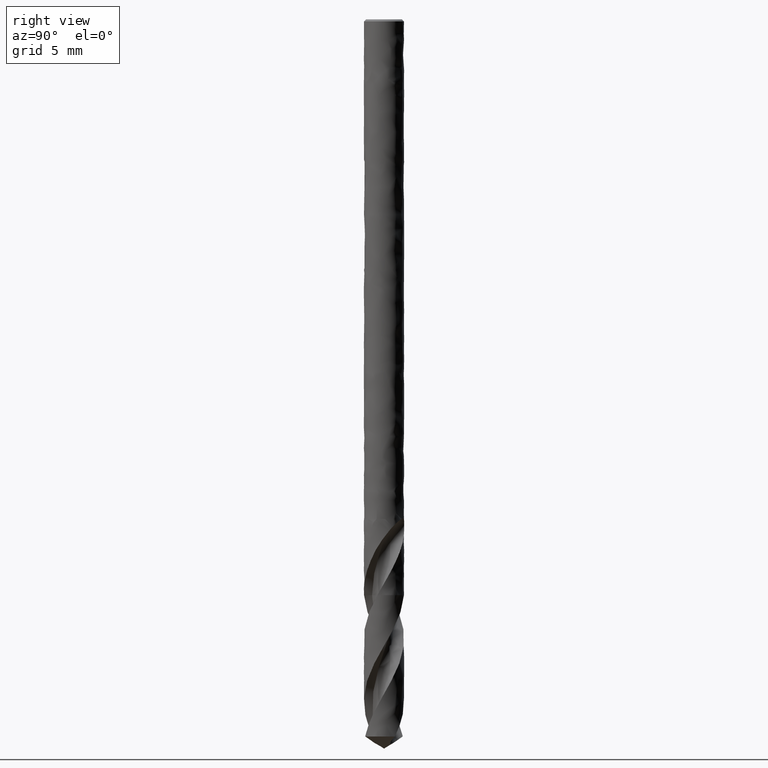
[diagram: clean part render]
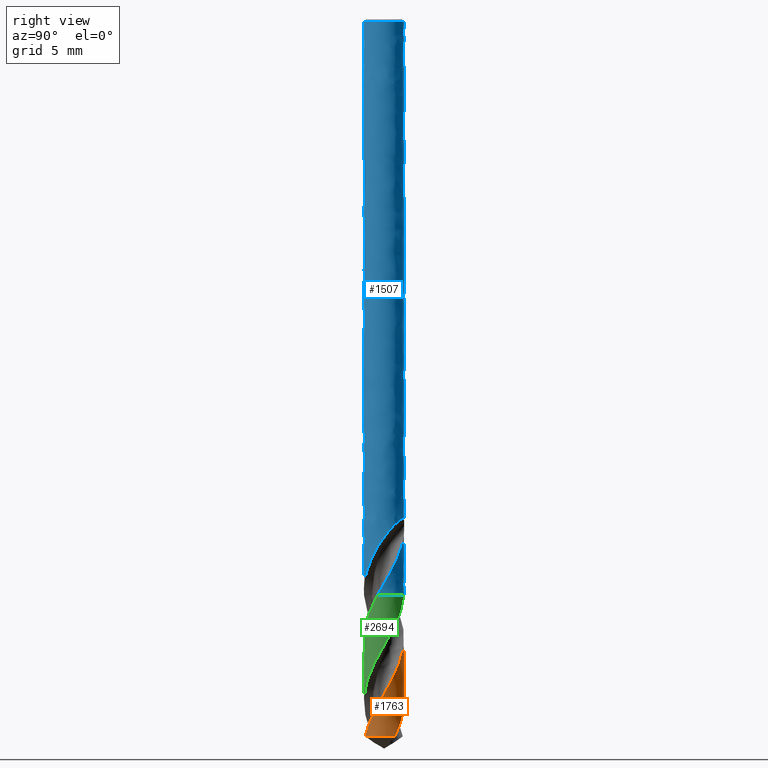
[diagram: same view with three faces highlighted in distinct colors, each labeled with its STEP entity id]
A machine part, right view with three faces highlighted in distinct colors.
Their STEP definitions:

[orange] entity #1763 — the highlighted face is a freeform B-spline surface patch.
#1601 = VERTEX_POINT('', #1602);
#1602 = CARTESIAN_POINT('', (-0.992891817446954, 0.341563813725761, -30.));
#1608 = EDGE_CURVE('', #1609, #1601, #1611, .T.);
#1609 = VERTEX_POINT('', #1610);
#1610 = CARTESIAN_POINT('', (-1.05, 1.90126415567627E-15, -30.));
#1611 = CIRCLE('', #1612, 1.05);
#1612 = AXIS2_PLACEMENT_3D('', #1613, #1614, #1615);
#1613 = CARTESIAN_POINT('', (-2.8796409701215E-16, 2.8639264964993E-15, -30.));
#1614 = DIRECTION('', (3.74939945665463E-33, 6.12323399573677E-17, -1.));
#1615 = DIRECTION('', (-1., -9.16821276974318E-16, -5.9888511568494E-32));
#1763 = ADVANCED_FACE('', (#1764), #1965, .T.);
#1764 = FACE_OUTER_BOUND('', #1765, .T.);
#1765 = EDGE_LOOP('', (#1766, #1767, #1872, #1881, #1890, #1959));
#1766 = ORIENTED_EDGE('', *, *, #1608, .T.);
#1767 = ORIENTED_EDGE('', *, *, #1768, .T.);
#1768 = EDGE_CURVE('', #1601, #1769, #1771, .T.);
#1769 = VERTEX_POINT('', #1770);
#1770 = CARTESIAN_POINT('', (0.414746518957032, -0.964616672576738, -37.3041250124934));
#1771 = B_SPLINE_CURVE_WITH_KNOTS('', 3, (#1772, #1773, #1774, #1775, #1776, #1777, #1778, #1779, #1780, #1781, #1782, #1783, #1784, #1785, #1786, #1787, #1788, #1789, #1790, #1791, #1792, #1793, #1794, #1795, #1796, #1797, #1798, #1799, #1800, #1801, #1802, #1803, #1804, #1805, #1806, #1807, #1808, #1809, #1810, #1811, #1812, #1813, #1814, #1815, #1816, #1817, #1818, #1819, #1820, #1821, #1822, #1823, #1824, #1825, #1826, #1827, #1828, #1829, #1830, #1831, #1832, #1833, #1834, #1835, #1836, #1837, #1838, #1839, #1840, #1841, #1842, #1843, #1844, #1845, #1846, #1847, #1848, #1849, #1850, #1851, #1852, #1853, #1854, #1855, #1856, #1857, #1858, #1859, #1860, #1861, #1862, #1863, #1864, #1865, #1866, #1867, #1868, #1869, #1870, #1871), .UNSPECIFIED., .F., .U., (4, 3, 3, 3, 3, 3, 3, 3, 3, 3, 3, 3, 3, 3, 3, 3, 3, 3, 3, 3, 3, 3, 3, 3, 3, 3, 3, 3, 3, 3, 3, 3, 3, 4), (0.398419045351917, 0.592460486345093, 0.888393894543971, 1.18414020719059, 1.47970496315348, 1.7750914175017, 2.07030110447432, 2.36533401323303, 2.66018812080098, 2.95485957559579, 2.99376558625141, 3.03268297021181, 3.32920643467023, 3.62551706977049, 3.92162749192273, 4.21754731644839, 4.51328365270362, 4.80884171912562, 5.10422476136677, 5.3994341488006, 5.69446972306132, 5.98932955963986, 6.28400981767872, 6.32291601213622, 6.34886213016673, 6.64537872201977, 6.94168591032445, 7.23779601782326, 7.53371862027575, 7.82946075284523, 8.12502753588666, 8.42042227508984, 8.71564642695001, 8.8093068966538), .UNSPECIFIED.);
#1772 = CARTESIAN_POINT('', (-0.992891817446954, 0.341563813725761, -30.));
#1773 = CARTESIAN_POINT('', (-0.982391710253549, 0.372086574321877, -30.0560506322032));
#1774 = CARTESIAN_POINT('', (-0.970476142070955, 0.402141009929866, -30.1121420459661));
#1775 = CARTESIAN_POINT('', (-0.957213011749595, 0.431559092289726, -30.1681976464017));
#1776 = CARTESIAN_POINT('', (-0.936985356567813, 0.476424731974059, -30.2536882756233));
#1777 = CARTESIAN_POINT('', (-0.913587515031026, 0.519882618093663, -30.3392372787093));
#1778 = CARTESIAN_POINT('', (-0.887282434881759, 0.561453364715553, -30.4247396010565));
#1779 = CARTESIAN_POINT('', (-0.860993985377635, 0.602997829405152, -30.5101878669716));
#1780 = CARTESIAN_POINT('', (-0.831770065953898, 0.642708033175344, -30.5956942482242));
#1781 = CARTESIAN_POINT('', (-0.799937058209071, 0.680147559654396, -30.6811540209042));
#1782 = CARTESIAN_POINT('', (-0.768123592534837, 0.717564102258494, -30.7665613304011));
#1783 = CARTESIAN_POINT('', (-0.733665969377584, 0.752757840562898, -30.8520266802564));
#1784 = CARTESIAN_POINT('', (-0.696947046506904, 0.785343755539769, -30.9374455401322));
#1785 = CARTESIAN_POINT('', (-0.660250274596731, 0.817910012823567, -31.0228128704521));
#1786 = CARTESIAN_POINT('', (-0.621250907053162, 0.847910691021013, -31.1082380308934));
#1787 = CARTESIAN_POINT('', (-0.580380738676048, 0.875018970179419, -31.1936169850094));
#1788 = CARTESIAN_POINT('', (-0.539535028131368, 0.902111026998265, -31.2789448460118));
#1789 = CARTESIAN_POINT('', (-0.49677158870164, 0.926346795036264, -31.3643302670854));
#1790 = CARTESIAN_POINT('', (-0.452562177329945, 0.947463706772136, -31.4496695866323));
#1791 = CARTESIAN_POINT('', (-0.40837923955016, 0.968567973225332, -31.5349578030714));
#1792 = CARTESIAN_POINT('', (-0.362699257013344, 0.986582392392605, -31.6203034876414));
#1793 = CARTESIAN_POINT('', (-0.316024182106921, 1.00131349552661, -31.7056031587994));
#1794 = CARTESIAN_POINT('', (-0.269377394075367, 1.0160356710505, -31.7908511351047));
#1795 = CARTESIAN_POINT('', (-0.221681267048574, 1.02749603875505, -31.8761564167008));
#1796 = CARTESIAN_POINT('', (-0.173458341543435, 1.03557336956359, -31.9614159553618));
#1797 = CARTESIAN_POINT('', (-0.125265288612042, 1.04364569672173, -32.0466226784413));
#1798 = CARTESIAN_POINT('', (-0.0764885739939683, 1.04834883615979, -32.1318864097613));
#1799 = CARTESIAN_POINT('', (-0.0276610356625526, 1.04963558776657, -32.2171045665434));
#1800 = CARTESIAN_POINT('', (-0.0212142465498001, 1.04980547993261, -32.22835607551));
#1801 = CARTESIAN_POINT('', (-0.014765985773232, 1.04991597346657, -32.2396077949758));
#1802 = CARTESIAN_POINT('', (-0.008317492410572, 1.04996705630225, -32.250859494009));
#1803 = CARTESIAN_POINT('', (-0.00186711397465326, 1.05001815407085, -32.2621144822255));
#1804 = CARTESIAN_POINT('', (0.00458363238809965, 1.05000980748518, -32.273369686388));
#1805 = CARTESIAN_POINT('', (0.0110335088852581, 1.04994202777186, -32.28462487416));
#1806 = CARTESIAN_POINT('', (0.0601770927965721, 1.04942559338273, -32.3703815960069));
#1807 = CARTESIAN_POINT('', (0.109303511302143, 1.04545018848805, -32.4561963926989));
#1808 = CARTESIAN_POINT('', (0.157870965735908, 1.03806394705607, -32.5419648000141));
#1809 = CARTESIAN_POINT('', (0.206403560937962, 1.03068300708994, -32.6276716471586));
#1810 = CARTESIAN_POINT('', (0.254436333959381, 1.019887279015, -32.7134362463349));
#1811 = CARTESIAN_POINT('', (0.30144115073163, 1.00579979749729, -32.799154650333));
#1812 = CARTESIAN_POINT('', (0.348414207007216, 0.991721834693635, -32.8848151356054));
#1813 = CARTESIAN_POINT('', (0.394416946850721, 0.974339757881173, -32.9705332258524));
#1814 = CARTESIAN_POINT('', (0.438945552164239, 0.953848416802062, -33.0562051818199));
#1815 = CARTESIAN_POINT('', (0.483445495715618, 0.933370265400459, -33.1418219932526));
#1816 = CARTESIAN_POINT('', (0.52652601314527, 0.909762587459322, -33.2274963123907));
#1817 = CARTESIAN_POINT('', (0.567716986227734, 0.883287848636332, -33.3131247539366));
#1818 = CARTESIAN_POINT('', (0.608882418404242, 0.856829525759942, -33.3987001006463));
#1819 = CARTESIAN_POINT('', (0.648209688713885, 0.827476199704072, -33.484332635632));
#1820 = CARTESIAN_POINT('', (0.685270947788607, 0.795552467230739, -33.5699195154732));
#1821 = CARTESIAN_POINT('', (0.722309866340154, 0.763647978380072, -33.655454803552));
#1822 = CARTESIAN_POINT('', (0.757129569157796, 0.729138287978556, -33.7410471250476));
#1823 = CARTESIAN_POINT('', (0.789352950995501, 0.692403003138128, -33.8265938135495));
#1824 = CARTESIAN_POINT('', (0.821557250724979, 0.655689472273883, -33.9120898428383));
#1825 = CARTESIAN_POINT('', (0.851206196170396, 0.6167098433606, -33.9976428606116));
#1826 = CARTESIAN_POINT('', (0.877980295751217, 0.575891135782284, -34.0831504742902));
#1827 = CARTESIAN_POINT('', (0.904738654918949, 0.535096425400104, -34.1686078182984));
#1828 = CARTESIAN_POINT('', (0.928657137624588, 0.492416662160956, -34.2541218285135));
#1829 = CARTESIAN_POINT('', (0.949479286475545, 0.448318061819844, -34.3395906964751));
#1830 = CARTESIAN_POINT('', (0.970289175676516, 0.404245425821266, -34.4250092421374));
#1831 = CARTESIAN_POINT('', (0.98803098515418, 0.358703614322249, -34.5104842789954));
#1832 = CARTESIAN_POINT('', (1.00251612376161, 0.312188118925218, -34.5959141690982));
#1833 = CARTESIAN_POINT('', (1.01699263430887, 0.265700330442404, -34.6812931729615));
#1834 = CARTESIAN_POINT('', (1.02823326269216, 0.218185861858064, -34.766728660609));
#1835 = CARTESIAN_POINT('', (1.03612048023408, 0.170159779148155, -34.8521192064284));
#1836 = CARTESIAN_POINT('', (1.04400289422248, 0.122162945772097, -34.9374577468282));
#1837 = CARTESIAN_POINT('', (1.048545204325, 0.0735990222214418, -35.0228524468041));
#1838 = CARTESIAN_POINT('', (1.04970249978284, 0.0249932380786073, -35.1082025104072));
#1839 = CARTESIAN_POINT('', (1.04985529577409, 0.0185758889755287, -35.1194711518616));
#1840 = CARTESIAN_POINT('', (1.04994923824491, 0.0121572440702468, -35.1307400071029));
#1841 = CARTESIAN_POINT('', (1.04998431873503, 0.00573850246383789, -35.1420088367627));
#1842 = CARTESIAN_POINT('', (1.05000771353244, 0.00145791348181613, -35.1495238967292));
#1843 = CARTESIAN_POINT('', (1.0500049308044, -0.00282276580602843, -35.1570390323338));
#1844 = CARTESIAN_POINT('', (1.04997597350599, -0.0071031725415561, -35.1645541767305));
#1845 = CARTESIAN_POINT('', (1.04964504463931, -0.0560203791722853, -35.2504385082972));
#1846 = CARTESIAN_POINT('', (1.04588723898543, -0.104932761881547, -35.3363800792387));
#1847 = CARTESIAN_POINT('', (1.03874784239845, -0.153306620576444, -35.4222760619065));
#1848 = CARTESIAN_POINT('', (1.03161348773835, -0.201646317076249, -35.5081113838084));
#1849 = CARTESIAN_POINT('', (1.02109394748615, -0.249505044991977, -35.5940036368113));
#1850 = CARTESIAN_POINT('', (1.00730809970298, -0.296361927839549, -35.6798506559257));
#1851 = CARTESIAN_POINT('', (0.99353142120796, -0.343187645083999, -35.76564057619));
#1852 = CARTESIAN_POINT('', (0.976476563493859, -0.389068118856318, -35.8514871739832));
#1853 = CARTESIAN_POINT('', (0.956332922684335, -0.433505871921724, -35.9372885429828));
#1854 = CARTESIAN_POINT('', (0.936202037380979, -0.477915485782369, -36.0230355802009));
#1855 = CARTESIAN_POINT('', (0.912962899725904, -0.520935905907941, -36.1088393026679));
#1856 = CARTESIAN_POINT('', (0.886871252357448, -0.562102643422026, -36.1945979546983));
#1857 = CARTESIAN_POINT('', (0.860795517110976, -0.603244275194808, -36.2803043063847));
#1858 = CARTESIAN_POINT('', (0.831840420377056, -0.642582359244232, -36.3660670683957));
#1859 = CARTESIAN_POINT('', (0.800323016811148, -0.679693363776862, -36.4517851129839));
#1860 = CARTESIAN_POINT('', (0.768824300341978, -0.716782364690752, -36.5374523341789));
#1861 = CARTESIAN_POINT('', (0.734729491598723, -0.751690346252926, -36.6231757099106));
#1862 = CARTESIAN_POINT('', (0.698409993091226, -0.784043035521845, -36.7088543737686));
#1863 = CARTESIAN_POINT('', (0.662111635477376, -0.816376892901801, -36.7944831656958));
#1864 = CARTESIAN_POINT('', (0.623549313298551, -0.846195792275356, -36.8801681269249));
#1865 = CARTESIAN_POINT('', (0.583141128974202, -0.873181781588855, -36.9658085036512));
#1866 = CARTESIAN_POINT('', (0.542756279949655, -0.900152186778453, -37.0513994239641));
#1867 = CARTESIAN_POINT('', (0.500481171785459, -0.924324040820648, -37.1370462753556));
#1868 = CARTESIAN_POINT('', (0.456772895495922, -0.945440914039727, -37.222648896087));
#1869 = CARTESIAN_POINT('', (0.442906354898119, -0.952140285523775, -37.2498065036711));
#1870 = CARTESIAN_POINT('', (0.428892500419376, -0.95853446734897, -37.2769662907974));
#1871 = CARTESIAN_POINT('', (0.414746518957032, -0.964616672576738, -37.3041250124934));
#1872 = ORIENTED_EDGE('', *, *, #1873, .T.);
#1873 = EDGE_CURVE('', #1769, #1874, #1876, .T.);
#1874 = VERTEX_POINT('', #1875);
#1875 = CARTESIAN_POINT('', (0.380658873556615, -0.978569783910481, -37.3690963500211));
#1876 = CIRCLE('', #1877, 4.31697492285645);
#1877 = AXIS2_PLACEMENT_3D('', #1878, #1879, #1880);
#1878 = CARTESIAN_POINT('', (-1.23375176341107, 3.0250589689259, -37.3389699574999));
#1879 = DIRECTION('', (0.805512264070602, 0.328523171466718, -0.493175950590965));
#1880 = DIRECTION('', (0.38186422482399, -0.924183186865683, 0.00807161163360696));
#1881 = ORIENTED_EDGE('', *, *, #1882, .F.);
#1882 = EDGE_CURVE('', #1883, #1874, #1885, .T.);
#1883 = VERTEX_POINT('', #1884);
#1884 = CARTESIAN_POINT('', (0.882739252845588, 0.568569618855612, -37.3690963500211));
#1885 = CIRCLE('', #1886, 1.05);
#1886 = AXIS2_PLACEMENT_3D('', #1887, #1888, #1889);
#1887 = CARTESIAN_POINT('', (1.40111669550444E-31, 2.28819721160412E-15, -37.3690963500211));
#1888 = DIRECTION('', (3.74939945665464E-33, 6.12323399573677E-17, -1.));
#1889 = DIRECTION('', (-1., 6.12323399573677E-17, 0.));
#1890 = ORIENTED_EDGE('', *, *, #1891, .F.);
#1891 = EDGE_CURVE('', #1892, #1883, #1894, .T.);
#1892 = VERTEX_POINT('', #1893);
#1893 = CARTESIAN_POINT('', (-1.05, 2.06297419755019E-15, -32.6409253996583));
#1894 = B_SPLINE_CURVE_WITH_KNOTS('', 3, (#1895, #1896, #1897, #1898, #1899, #1900, #1901, #1902, #1903, #1904, #1905, #1906, #1907, #1908, #1909, #1910, #1911, #1912, #1913, #1914, #1915, #1916, #1917, #1918, #1919, #1920, #1921, #1922, #1923, #1924, #1925, #1926, #1927, #1928, #1929, #1930, #1931, #1932, #1933, #1934, #1935, #1936, #1937, #1938, #1939, #1940, #1941, #1942, #1943, #1944, #1945, #1946, #1947, #1948, #1949, #1950, #1951, #1952, #1953, #1954, #1955, #1956, #1957, #1958), .UNSPECIFIED., .F., .U., (4, 3, 3, 3, 3, 3, 3, 3, 3, 3, 3, 3, 3, 3, 3, 3, 3, 3, 3, 3, 3, 4), (0., 0.296536832167042, 0.592861140614675, 0.888985351162824, 1.18491913503596, 1.48066948318523, 1.77624144623766, 2.07163828835769, 2.36686128489776, 2.66191012544958, 2.95678287466588, 3.25147561360206, 3.30982191878022, 3.3357660959333, 3.63228732538247, 3.92859868788851, 4.22471230619403, 4.52063760110015, 4.81638146710458, 5.11194881912507, 5.40734278305423, 5.44264951050568), .UNSPECIFIED.);
#1895 = CARTESIAN_POINT('', (-1.05, 2.17191618709425E-15, -32.6409253996583));
#1896 = CARTESIAN_POINT('', (-1.05, 0.0490915656437796, -32.7267185983498));
#1897 = CARTESIAN_POINT('', (-1.04654876386867, 0.0982066540228905, -32.812567119327));
#1898 = CARTESIAN_POINT('', (-1.03968666871437, 0.146804737313264, -32.8983668437419));
#1899 = CARTESIAN_POINT('', (-1.03282949152583, 0.195367991050285, -32.9841050767177));
#1900 = CARTESIAN_POINT('', (-1.02255817763009, 0.243472914068504, -33.0698984236975));
#1901 = CARTESIAN_POINT('', (-1.00898797532754, 0.2905912346311, -33.1556432110794));
#1902 = CARTESIAN_POINT('', (-0.995426936528968, 0.337677737766968, -33.2413300978727));
#1903 = CARTESIAN_POINT('', (-0.978555288665051, 0.38383523297169, -33.3270719046014));
#1904 = CARTESIAN_POINT('', (-0.958560326843859, 0.428558163848611, -33.4127652186623));
#1905 = CARTESIAN_POINT('', (-0.938578223053051, 0.473252335040507, -33.4984034264797));
#1906 = CARTESIAN_POINT('', (-0.915453150511185, 0.516566811469794, -33.5840964956757));
#1907 = CARTESIAN_POINT('', (-0.889440350797793, 0.558028549782848, -33.6697411951949));
#1908 = CARTESIAN_POINT('', (-0.863443675220965, 0.599464587873777, -33.7553328075091));
#1909 = CARTESIAN_POINT('', (-0.834532071471027, 0.639099268571373, -33.8409790962878));
#1910 = CARTESIAN_POINT('', (-0.80302354702298, 0.676500689524142, -33.9265772451585));
#1911 = CARTESIAN_POINT('', (-0.771534027290296, 0.713879551395778, -34.012123764558));
#1912 = CARTESIAN_POINT('', (-0.737413357700917, 0.749072234830592, -34.0977247698393));
#1913 = CARTESIAN_POINT('', (-0.701035577349065, 0.781696308863531, -34.1832776952092));
#1914 = CARTESIAN_POINT('', (-0.664679350160604, 0.814301053734785, -34.26877993205));
#1915 = CARTESIAN_POINT('', (-0.62602585139859, 0.844378690994887, -34.3543366046741));
#1916 = CARTESIAN_POINT('', (-0.585497479388867, 0.87160352318545, -34.439845298517));
#1917 = CARTESIAN_POINT('', (-0.544992958948735, 0.898812333143996, -34.5253036691798));
#1918 = CARTESIAN_POINT('', (-0.502568137170719, 0.923203708994006, -34.6108163118625));
#1919 = CARTESIAN_POINT('', (-0.458685631040233, 0.944514421211891, -34.6962812042585));
#1920 = CARTESIAN_POINT('', (-0.414829011786145, 0.965812561956042, -34.7816956797732));
#1921 = CARTESIAN_POINT('', (-0.369464705428782, 0.984058815713605, -34.8671642267367));
#1922 = CARTESIAN_POINT('', (-0.323086163238694, 0.999057221145888, -34.9525850973587));
#1923 = CARTESIAN_POINT('', (-0.276735300735194, 1.01404667521528, -35.0379549870136));
#1924 = CARTESIAN_POINT('', (-0.229317089201152, 1.02580975963808, -35.1233788892312));
#1925 = CARTESIAN_POINT('', (-0.181345883512545, 1.03422128702385, -35.2087551967154));
#1926 = CARTESIAN_POINT('', (-0.133403962694093, 1.04262767944411, -35.2940793847242));
#1927 = CARTESIAN_POINT('', (-0.0848537320542332, 1.04769643936642, -35.3794574461653));
#1928 = CARTESIAN_POINT('', (-0.0362207486778489, 1.04937507944739, -35.4647881402913));
#1929 = CARTESIAN_POINT('', (-0.0265918894801434, 1.04970743390852, -35.4816827904225));
#1930 = CARTESIAN_POINT('', (-0.0169584638924008, 1.04990724705223, -35.498577965646));
#1931 = CARTESIAN_POINT('', (-0.00732454497083022, 1.04997445256586, -35.5154728667));
#1932 = CARTESIAN_POINT('', (-0.00304074159345395, 1.05000433606484, -35.5229853270793));
#1933 = CARTESIAN_POINT('', (0.00124322457876489, 1.05000800262245, -35.5304978446574));
#1934 = CARTESIAN_POINT('', (0.00552699278641663, 1.04998545339959, -35.5380103506857));
#1935 = CARTESIAN_POINT('', (0.0544870429785468, 1.04972773378704, -35.6238722961474));
#1936 = CARTESIAN_POINT('', (0.103452147038104, 1.04603713600554, -35.7097890543031));
#1937 = CARTESIAN_POINT('', (0.151886640224872, 1.0389564228211, -35.7956575000979));
#1938 = CARTESIAN_POINT('', (0.200286853238694, 1.03188072110795, -35.8814651713294));
#1939 = CARTESIAN_POINT('', (0.248214246430545, 1.02141137827418, -35.9673274844964));
#1940 = CARTESIAN_POINT('', (0.295145652357313, 1.00766514472546, -36.0531417421559));
#1941 = CARTESIAN_POINT('', (0.342045738481609, 0.993928084763402, -36.1388987314351));
#1942 = CARTESIAN_POINT('', (0.388006628137134, 0.976902285661021, -36.2247101355416));
#1943 = CARTESIAN_POINT('', (0.432527839318117, 0.956775662428284, -36.3104735712081));
#1944 = CARTESIAN_POINT('', (0.477020735739776, 0.936661839397467, -36.3961824627378));
#1945 = CARTESIAN_POINT('', (0.520128071658856, 0.913427536577955, -36.4819457058698));
#1946 = CARTESIAN_POINT('', (0.561381841045637, 0.887327689494845, -36.5676610620772));
#1947 = CARTESIAN_POINT('', (0.602610318150211, 0.861243843972507, -36.6533238670387));
#1948 = CARTESIAN_POINT('', (0.642035747553868, 0.832267461356766, -36.7390408897876));
#1949 = CARTESIAN_POINT('', (0.679231100108399, 0.800715375552101, -36.8247102664936));
#1950 = CARTESIAN_POINT('', (0.71640425271014, 0.769182121530634, -36.9103285116471));
#1951 = CARTESIAN_POINT('', (0.751393668595573, 0.735039210305407, -36.9960007452059));
#1952 = CARTESIAN_POINT('', (0.783821320529075, 0.698658813358897, -37.0816254343721));
#1953 = CARTESIAN_POINT('', (0.816229949493237, 0.662299758172717, -37.1671998936962));
#1954 = CARTESIAN_POINT('', (0.846117720278703, 0.623663373872018, -37.2528282744344));
#1955 = CARTESIAN_POINT('', (0.873162882207776, 0.583169427469079, -37.338409158602));
#1956 = CARTESIAN_POINT('', (0.876395433572092, 0.578329420889171, -37.3486381453835));
#1957 = CARTESIAN_POINT('', (0.879587721510308, 0.573462564809749, -37.3588672663512));
#1958 = CARTESIAN_POINT('', (0.882739252845586, 0.568569618855615, -37.3690963500211));
#1959 = ORIENTED_EDGE('', *, *, #1960, .T.);
#1960 = EDGE_CURVE('', #1892, #1609, #1961, .T.);
#1961 = LINE('', #1962, #1963);
#1962 = CARTESIAN_POINT('', (-1.05, 2.06297419755019E-15, -32.6409253996583));
#1963 = VECTOR('', #1964, 2.6409253996583);
#1964 = DIRECTION('', (0., -1.61710041873925E-16, 2.6409253996583));
#1965 = (
   BOUNDED_SURFACE ()
   B_SPLINE_SURFACE (1, 2, ((#1966, #1967, #1968, #1969, #1970, #1971, #1972), (#1973, #1974, #1975, #1976, #1977, #1978, #1979)), .UNSPECIFIED., .F., .F., .U.)
   B_SPLINE_SURFACE_WITH_KNOTS ((2, 2), (3, 2, 2, 3), (-0.559493465160957, -0.251098556183302), (0., 0.25, 0.5, 0.688440885592996), .UNSPECIFIED.)
   GEOMETRIC_REPRESENTATION_ITEM ()
   RATIONAL_B_SPLINE_SURFACE (((1., 0.707106781186548, 1., 0.707106781186548, 1., 0.77922776985044, 0.89127565621067), (1., 0.707106781186547, 1., 0.707106781186547, 1., 0.77922776985044, 0.89127565621067)))
   REPRESENTATION_ITEM ('')
   SURFACE ()
);
#1966 = CARTESIAN_POINT('', (-1.05, 2.35249116855935E-15, -37.3690963500211));
#1967 = CARTESIAN_POINT('', (-1.05, 1.05, -37.3690963500211));
#1968 = CARTESIAN_POINT('', (-1.31492039479042E-15, 1.05, -37.3690963500211));
#1969 = CARTESIAN_POINT('', (1.05, 1.05, -37.3690963500211));
#1970 = CARTESIAN_POINT('', (1.05, 4.40640376411589E-15, -37.3690963500211));
#1971 = CARTESIAN_POINT('', (1.05, -0.718199350032089, -37.3690963500211));
#1972 = CARTESIAN_POINT('', (0.380658873556614, -0.978569783910479, -37.3690963500211));
#1973 = CARTESIAN_POINT('', (-1.05, 1.90126415567627E-15, -30.));
#1974 = CARTESIAN_POINT('', (-1.05, 1.05, -30.));
#1975 = CARTESIAN_POINT('', (-1.31492039479042E-15, 1.05, -30.));
#1976 = CARTESIAN_POINT('', (1.05, 1.05, -30.));
#1977 = CARTESIAN_POINT('', (1.05, 3.95517675123281E-15, -30.));
#1978 = CARTESIAN_POINT('', (1.05, -0.71819935003209, -30.));
#1979 = CARTESIAN_POINT('', (0.380658873556614, -0.97856978391048, -30.));

[blue] entity #1507 — the highlighted face is a freeform B-spline surface patch.
#73 = VERTEX_POINT('', #74);
#74 = CARTESIAN_POINT('', (-1.05, 7.07233526507596E-17, -0.105));
#90 = EDGE_CURVE('', #73, #73, #91, .T.);
#91 = CIRCLE('', #92, 1.04999999999998);
#92 = AXIS2_PLACEMENT_3D('', #93, #94, #95);
#93 = CARTESIAN_POINT('', (3.93686942948736E-34, 6.42939569552357E-18, -0.105));
#94 = DIRECTION('', (3.74939945665464E-33, 6.12323399573677E-17, -1.));
#95 = DIRECTION('', (-1., 6.12323399573677E-17, 0.));
#129 = VERTEX_POINT('', #130);
#130 = CARTESIAN_POINT('', (-0.135414455549916, -1.04123144652287, -30.));
#139 = VERTEX_POINT('', #140);
#140 = CARTESIAN_POINT('', (1.00877154541879, 0.291341670815203, -26.6222620833544));
#164 = EDGE_CURVE('', #139, #129, #165, .T.);
#165 = B_SPLINE_CURVE_WITH_KNOTS('', 3, (#166, #167, #168, #169, #170, #171, #172, #173, #174, #175, #176, #177, #178, #179, #180, #181, #182, #183, #184, #185, #186, #187, #188, #189, #190, #191, #192, #193, #194, #195, #196, #197, #198, #199, #200, #201, #202, #203, #204, #205, #206, #207, #208, #209, #210, #211, #212, #213, #214, #215, #216, #217, #218, #219, #220, #221, #222, #223, #224, #225, #226, #227, #228, #229, #230, #231, #232, #233, #234, #235, #236, #237, #238, #239, #240, #241, #242, #243, #244, #245, #246, #247, #248, #249, #250, #251, #252, #253, #254, #255, #256, #257, #258, #259), .UNSPECIFIED., .F., .U., (4, 3, 3, 3, 3, 3, 3, 3, 3, 3, 3, 3, 3, 3, 3, 3, 3, 3, 3, 3, 3, 3, 3, 3, 3, 3, 3, 3, 3, 3, 3, 4), (0., 0.130415114074845, 0.26087712101041, 0.391399997075223, 0.4496308363841, 0.475550624271614, 0.606927854424807, 0.738338068984637, 0.869794582886537, 0.957422816286365, 1.15490233229557, 1.28646644055254, 1.37414162343336, 1.43255835670985, 1.52016035670497, 1.60774776756008, 1.80487555785222, 2.00186225492928, 2.13320847062743, 2.26453963771025, 2.39585774533023, 2.48341700680347, 2.57096810259521, 2.70225955695434, 2.83353964113494, 3.03034422902117, 3.22709333593311, 3.52183856959716, 3.65301344526012, 3.69191927739713, 3.71786797133615, 3.97280433838248), .UNSPECIFIED.);
#166 = CARTESIAN_POINT('', (1.00877154541879, 0.291341670815203, -26.6222620833544));
#167 = CARTESIAN_POINT('', (1.01655546305362, 0.264389829014032, -26.6554704852818));
#168 = CARTESIAN_POINT('', (1.02319037327919, 0.23736058904054, -26.6889047071426));
#169 = CARTESIAN_POINT('', (1.02870875096508, 0.210376580654504, -26.7225380225892));
#170 = CARTESIAN_POINT('', (1.0342291128728, 0.183382869732408, -26.7561834314376));
#171 = CARTESIAN_POINT('', (1.03863554373024, 0.15641797085575, -26.7900525993893));
#172 = CARTESIAN_POINT('', (1.04197123387735, 0.129599181217027, -26.8241227337458));
#173 = CARTESIAN_POINT('', (1.04530848034387, 0.102767878844436, -26.8582087640667));
#174 = CARTESIAN_POINT('', (1.0475765867202, 0.0760632497272906, -26.8925156375277));
#175 = CARTESIAN_POINT('', (1.04882824542971, 0.0495914467305858, -26.9270205713866));
#176 = CARTESIAN_POINT('', (1.04938665434147, 0.0377814456565064, -26.9424144342823));
#177 = CARTESIAN_POINT('', (1.04974301523414, 0.0260154871943531, -26.957850820688));
#178 = CARTESIAN_POINT('', (1.04990257598069, 0.0143031796850627, -26.9733283965289));
#179 = CARTESIAN_POINT('', (1.04997359987035, 0.00908978194054727, -26.9802177954723));
#180 = CARTESIAN_POINT('', (1.05000564176241, 0.00388681487443229, -26.9871156109111));
#181 = CARTESIAN_POINT('', (1.04999918902589, -0.00130500764895939, -26.9940216456261));
#182 = CARTESIAN_POINT('', (1.04996648263749, -0.0276203180029743, -27.0290256246763));
#183 = CARTESIAN_POINT('', (1.04894398439079, -0.0536580022829603, -27.0642520030612));
#184 = CARTESIAN_POINT('', (1.04699917711988, -0.0793266859908025, -27.0996795570195));
#185 = CARTESIAN_POINT('', (1.04505388157325, -0.105001814242347, -27.1351160056457));
#186 = CARTESIAN_POINT('', (1.04218489251128, -0.130319717665649, -27.1707740288536));
#187 = CARTESIAN_POINT('', (1.03846744642628, -0.155194596274721, -27.2066370918227));
#188 = CARTESIAN_POINT('', (1.03474869058535, -0.180078238970494, -27.2425127903105));
#189 = CARTESIAN_POINT('', (1.03017875265059, -0.204534422062569, -27.2786090022478));
#190 = CARTESIAN_POINT('', (1.02483683664695, -0.228493891059419, -27.3149063622015));
#191 = CARTESIAN_POINT('', (1.02127594302156, -0.244465149379555, -27.3391019949275));
#192 = CARTESIAN_POINT('', (1.01737128559569, -0.260219652369813, -27.3633935461106));
#193 = CARTESIAN_POINT('', (1.01314830469541, -0.275736310073447, -27.3877777513422));
#194 = CARTESIAN_POINT('', (1.00363136943441, -0.310704743585198, -27.4427301435173));
#195 = CARTESIAN_POINT('', (0.992489229707779, -0.344485842023241, -27.4981912819787));
#196 = CARTESIAN_POINT('', (0.980027293507734, -0.376890572951757, -27.5541176832968));
#197 = CARTESIAN_POINT('', (0.97172494622409, -0.398479138763913, -27.591376773587));
#198 = CARTESIAN_POINT('', (0.962832250299942, -0.419472935552313, -27.6288580173491));
#199 = CARTESIAN_POINT('', (0.953432706917342, -0.439847784330292, -27.6665375751353));
#200 = CARTESIAN_POINT('', (0.947168789683503, -0.453425716917263, -27.6916474790715));
#201 = CARTESIAN_POINT('', (0.940678664976687, -0.466730779988444, -27.7168511404122));
#202 = CARTESIAN_POINT('', (0.933995270984848, -0.479742466098433, -27.7421519794785));
#203 = CARTESIAN_POINT('', (0.929542220174179, -0.488411968367941, -27.7590095704049));
#204 = CARTESIAN_POINT('', (0.92500415625806, -0.496950012780077, -27.7759130485647));
#205 = CARTESIAN_POINT('', (0.920387646127015, -0.505357874042523, -27.7928589627084));
#206 = CARTESIAN_POINT('', (0.913464706452126, -0.517966341188153, -27.8182711329459));
#207 = CARTESIAN_POINT('', (0.906367241780761, -0.530280596535863, -27.8437835271477));
#208 = CARTESIAN_POINT('', (0.899078998826014, -0.542362382425312, -27.8693489510252));
#209 = CARTESIAN_POINT('', (0.891791969647173, -0.554442156227527, -27.8949101172653));
#210 = CARTESIAN_POINT('', (0.884313817997225, -0.566292201606189, -27.9205268013797));
#211 = CARTESIAN_POINT('', (0.876571671056893, -0.578032962295856, -27.9461121223295));
#212 = CARTESIAN_POINT('', (0.859146880170112, -0.604457195967196, -28.0036954865768));
#213 = CARTESIAN_POINT('', (0.840368476002039, -0.630323397604082, -28.0611440490226));
#214 = CARTESIAN_POINT('', (0.820368728149762, -0.655358794763598, -28.1185108188072));
#215 = CARTESIAN_POINT('', (0.800383295015472, -0.680376272964701, -28.1758365286176));
#216 = CARTESIAN_POINT('', (0.779178701869207, -0.704572396822946, -28.2331151721081));
#217 = CARTESIAN_POINT('', (0.756806034003274, -0.727835576827811, -28.2902974853439));
#218 = CARTESIAN_POINT('', (0.741888451735713, -0.743346932183693, -28.3284253414876));
#219 = CARTESIAN_POINT('', (0.726443371372581, -0.758451721080763, -28.3665181708859));
#220 = CARTESIAN_POINT('', (0.710498206392456, -0.773105619377521, -28.4045692523195));
#221 = CARTESIAN_POINT('', (0.694554868283801, -0.787757838745981, -28.4426159741598));
#222 = CARTESIAN_POINT('', (0.678109220131155, -0.801960919317392, -28.4806312078205));
#223 = CARTESIAN_POINT('', (0.661206779335169, -0.815662672286289, -28.5186180485153));
#224 = CARTESIAN_POINT('', (0.644306019303943, -0.829363062764181, -28.5566011118301));
#225 = CARTESIAN_POINT('', (0.626943823503717, -0.842566218380193, -28.5945643127664));
#226 = CARTESIAN_POINT('', (0.609166167264579, -0.855228963880538, -28.6325071553416));
#227 = CARTESIAN_POINT('', (0.597312520579928, -0.863672130358709, -28.6578063873691));
#228 = CARTESIAN_POINT('', (0.585273300890199, -0.87187567152864, -28.6831004530897));
#229 = CARTESIAN_POINT('', (0.573072235281465, -0.87982283054573, -28.7083951917255));
#230 = CARTESIAN_POINT('', (0.560872307530841, -0.887769248419412, -28.7336875714014));
#231 = CARTESIAN_POINT('', (0.548512077928241, -0.895458597276295, -28.7589852020181));
#232 = CARTESIAN_POINT('', (0.536003738411763, -0.90288426301969, -28.7842851861015));
#233 = CARTESIAN_POINT('', (0.517246256602026, -0.914019777044028, -28.8222249934282));
#234 = CARTESIAN_POINT('', (0.498151476048391, -0.924564965513753, -28.8601773730925));
#235 = CARTESIAN_POINT('', (0.478748789550711, -0.93450500079118, -28.8981247475968));
#236 = CARTESIAN_POINT('', (0.459347783375719, -0.944444175235918, -28.9360688357607));
#237 = CARTESIAN_POINT('', (0.439630948912372, -0.953782001430955, -28.9740150338855));
#238 = CARTESIAN_POINT('', (0.419642690283401, -0.962496759730495, -29.0119552837607));
#239 = CARTESIAN_POINT('', (0.389677893821003, -0.975561227401842, -29.0688322677114));
#240 = CARTESIAN_POINT('', (0.359092363208123, -0.987228858992812, -29.1257235147927));
#241 = CARTESIAN_POINT('', (0.32804587263012, -0.997439675093356, -29.1826042259631));
#242 = CARTESIAN_POINT('', (0.297008134335608, -1.00764761267348, -29.2394689019521));
#243 = CARTESIAN_POINT('', (0.265489935756422, -1.01640655381979, -29.2963518538516));
#244 = CARTESIAN_POINT('', (0.233641091979012, -1.02367565182476, -29.3532196472644));
#245 = CARTESIAN_POINT('', (0.185929084293489, -1.03456531746865, -29.4384119580225));
#246 = CARTESIAN_POINT('', (0.137429269951516, -1.04211666602405, -29.5236581897974));
#247 = CARTESIAN_POINT('', (0.0886760618996294, -1.04624880217182, -29.6088567840524));
#248 = CARTESIAN_POINT('', (0.0669786932098074, -1.04808778846743, -29.6467739875611));
#249 = CARTESIAN_POINT('', (0.0452227056650879, -1.04925162323716, -29.6846964364137));
#250 = CARTESIAN_POINT('', (0.0234551743957197, -1.04973799340315, -29.7226149019295));
#251 = CARTESIAN_POINT('', (0.0169990301583178, -1.04988224843627, -29.7338613349587));
#252 = CARTESIAN_POINT('', (0.010541578135405, -1.04996694011605, -29.7451079390073));
#253 = CARTESIAN_POINT('', (0.00408405729678267, -1.04999205733948, -29.7563544788108));
#254 = CARTESIAN_POINT('', (-0.000222860783162365, -1.05000880956164, -29.763855488382));
#255 = CARTESIAN_POINT('', (-0.00452985997576231, -1.04999906164607, -29.7713565573683));
#256 = CARTESIAN_POINT('', (-0.00883657279154876, -1.04996281599935, -29.77885761593));
#257 = CARTESIAN_POINT('', (-0.0511484410400556, -1.0496067158613, -29.8525527553935));
#258 = CARTESIAN_POINT('', (-0.0934628255113838, -1.04668734891621, -29.9263000105243));
#259 = CARTESIAN_POINT('', (-0.135414455549916, -1.04123144652287, -30.));
#359 = VERTEX_POINT('', #360);
#360 = CARTESIAN_POINT('', (1.03944976676884, -0.148472833758227, -29.6547034049127));
#369 = EDGE_CURVE('', #370, #359, #372, .T.);
#370 = VERTEX_POINT('', #371);
#371 = CARTESIAN_POINT('', (0.782208918882466, 0.700463565948099, -28.0527103026529));
#372 = B_SPLINE_CURVE_WITH_KNOTS('', 3, (#373, #374, #375, #376, #377, #378, #379, #380, #381, #382, #383, #384, #385, #386, #387, #388, #389, #390, #391, #392, #393, #394, #395, #396, #397, #398, #399, #400, #401, #402, #403, #404, #405, #406), .UNSPECIFIED., .F., .U., (4, 3, 3, 3, 3, 3, 3, 3, 3, 3, 3, 4), (0., 0.13133972629884, 0.328235195636092, 0.525092876415898, 0.656359922986875, 0.787629033900919, 0.984397754771338, 1.18111910121638, 1.37777896615772, 1.50895134112161, 1.54785696361958, 1.84516146076166), .UNSPECIFIED.);
#373 = CARTESIAN_POINT('', (0.782208918882464, 0.700463565948101, -28.0527103026529));
#374 = CARTESIAN_POINT('', (0.796151295959081, 0.684894088490711, -28.0911795358756));
#375 = CARTESIAN_POINT('', (0.809726844210736, 0.668797197088639, -28.1295737315647));
#376 = CARTESIAN_POINT('', (0.822863472641311, 0.65222366209222, -28.1679068418322));
#377 = CARTESIAN_POINT('', (0.842557000968466, 0.627377760218841, -28.2253731998792));
#378 = CARTESIAN_POINT('', (0.86128187801198, 0.601440760668405, -28.2827196239858));
#379 = CARTESIAN_POINT('', (0.878904535978424, 0.574479605065797, -28.3399041867613));
#380 = CARTESIAN_POINT('', (0.896523811770431, 0.547523623900066, -28.3970777745655));
#381 = CARTESIAN_POINT('', (0.913047653829156, 0.519527639250661, -28.454119112134));
#382 = CARTESIAN_POINT('', (0.928297923191228, 0.490676029370557, -28.511047987357));
#383 = CARTESIAN_POINT('', (0.938466984467582, 0.471437432213581, -28.5490088395094));
#384 = CARTESIAN_POINT('', (0.94807410642492, 0.451812111886709, -28.5869304126839));
#385 = CARTESIAN_POINT('', (0.957073077257195, 0.431869337635236, -28.6248232088734));
#386 = CARTESIAN_POINT('', (0.966072189609855, 0.411926249757999, -28.6627166009758));
#387 = CARTESIAN_POINT('', (0.974463808610004, 0.391662352802299, -28.7005915881401));
#388 = CARTESIAN_POINT('', (0.982201696754211, 0.371187051084958, -28.7384796739837));
#389 = CARTESIAN_POINT('', (0.993800574371132, 0.340495147252417, -28.7952728535502));
#390 = CARTESIAN_POINT('', (1.00394465026711, 0.309303256692087, -28.8521136009947));
#391 = CARTESIAN_POINT('', (1.01260972579442, 0.27770765784638, -28.9089346073902));
#392 = CARTESIAN_POINT('', (1.02127271510105, 0.246119666019376, -28.9657419334481));
#393 = CARTESIAN_POINT('', (1.028462127745, 0.214101369328365, -29.0225553805927));
#394 = CARTESIAN_POINT('', (1.03413656603345, 0.18182838830161, -29.0793548202994));
#395 = CARTESIAN_POINT('', (1.03980923088447, 0.149565493579359, -29.1361365084249));
#396 = CARTESIAN_POINT('', (1.04397076296025, 0.117035484948745, -29.1929380221775));
#397 = CARTESIAN_POINT('', (1.04660274372253, 0.0843960711892721, -29.2497268851302));
#398 = CARTESIAN_POINT('', (1.04835827817055, 0.0626255415413633, -29.2876051274814));
#399 = CARTESIAN_POINT('', (1.0494343310187, 0.0407988557297479, -29.3254887102008));
#400 = CARTESIAN_POINT('', (1.04982875080143, 0.018962963657779, -29.3633679572422));
#401 = CARTESIAN_POINT('', (1.04994573539652, 0.0124864553678882, -29.3746029119063));
#402 = CARTESIAN_POINT('', (1.05000278575216, 0.00600887147352004, -29.38583803047));
#403 = CARTESIAN_POINT('', (1.04999989547043, -0.000468521159221404, -29.3970730839926));
#404 = CARTESIAN_POINT('', (1.04997780884905, -0.0499667128298426, -29.4829278197208));
#405 = CARTESIAN_POINT('', (1.04644678980804, -0.0994870780339567, -29.5688398822844));
#406 = CARTESIAN_POINT('', (1.03944976676884, -0.148472833758224, -29.6547034049127));
#409 = VERTEX_POINT('', #410);
#410 = CARTESIAN_POINT('', (0.57196852286132, 0.880540747981514, -27.5669624606441));
#419 = EDGE_CURVE('', #420, #409, #422, .T.);
#420 = VERTEX_POINT('', #421);
#421 = CARTESIAN_POINT('', (0.345936761403255, 0.991376697885235, -26.));
#422 = B_SPLINE_CURVE_WITH_KNOTS('', 3, (#423, #424, #425, #426, #427, #428, #429, #430, #431, #432, #433, #434, #435, #436, #437, #438, #439, #440, #441, #442, #443, #444, #445, #446, #447, #448, #449, #450, #451, #452, #453, #454, #455, #456, #457, #458, #459, #460, #461, #462, #463, #464, #465, #466, #467, #468, #469, #470, #471, #472, #473, #474, #475, #476, #477, #478, #479, #480, #481, #482, #483, #484, #485, #486, #487, #488, #489, #490, #491, #492, #493, #494, #495, #496, #497, #498, #499, #500, #501, #502, #503, #504, #505, #506, #507), .UNSPECIFIED., .F., .U., (4, 3, 3, 3, 3, 3, 3, 3, 3, 3, 3, 3, 3, 3, 3, 3, 3, 3, 3, 3, 3, 3, 3, 3, 3, 3, 3, 3, 4), (0., 0.058280017900237, 0.116353961126958, 0.154999582403436, 0.193576873552, 0.232105380273283, 0.270616297883752, 0.309145192496733, 0.347721883823756, 0.386363860599954, 0.425076050624482, 0.463854616084391, 0.50270718258308, 0.561048444779216, 0.648800359965174, 0.736750594708691, 0.824810468198701, 0.912922825566689, 1.00104985839076, 1.08916643914648, 1.17725707545499, 1.30967583584698, 1.39765663463878, 1.48558498333805, 1.57346354442238, 1.66129336989001, 1.74907310687979, 1.83680332013748, 1.91224977555523), .UNSPECIFIED.);
#423 = CARTESIAN_POINT('', (0.345936761403456, 0.991376697885165, -26.));
#424 = CARTESIAN_POINT('', (0.327594721070438, 0.997777076312327, -26.0000179448276));
#425 = CARTESIAN_POINT('', (0.309017574330095, 1.00368253512883, -26.0012150408971));
#426 = CARTESIAN_POINT('', (0.290520835384896, 1.00900824783907, -26.0038424049995));
#427 = CARTESIAN_POINT('', (0.27208949980738, 1.01431512914624, -26.006460478899));
#428 = CARTESIAN_POINT('', (0.253619913620109, 1.01907754478323, -26.0105237730701));
#429 = CARTESIAN_POINT('', (0.235595493062835, 1.02322762064385, -26.0162359149843));
#430 = CARTESIAN_POINT('', (0.223601044401668, 1.02598931118986, -26.0200370908789));
#431 = CARTESIAN_POINT('', (0.211752327822812, 1.02849340198025, -26.0245842280172));
#432 = CARTESIAN_POINT('', (0.20023200731862, 1.03073136327811, -26.0298961406905));
#433 = CARTESIAN_POINT('', (0.188732056133063, 1.03296536758999, -26.0351986612603));
#434 = CARTESIAN_POINT('', (0.177509247826395, 1.03494397739456, -26.0412885445473));
#435 = CARTESIAN_POINT('', (0.166758493019503, 1.03667333572629, -26.0481286445298));
#436 = CARTESIAN_POINT('', (0.156021333501457, 1.03840050713008, -26.0549600945956));
#437 = CARTESIAN_POINT('', (0.145703688696237, 1.03988776102357, -26.062574030664));
#438 = CARTESIAN_POINT('', (0.135982151104027, 1.04115745907193, -26.0708696921375));
#439 = CARTESIAN_POINT('', (0.126265051607569, 1.04242657747521, -26.0791615664591));
#440 = CARTESIAN_POINT('', (0.117095392096233, 1.04348531130601, -26.0881753927767));
#441 = CARTESIAN_POINT('', (0.108601534409054, 1.04436856842975, -26.0977598647159));
#442 = CARTESIAN_POINT('', (0.100103711765689, 1.04525223786035, -26.1073488107131));
#443 = CARTESIAN_POINT('', (0.092241423791524, 1.04596516560231, -26.1175528518861));
#444 = CARTESIAN_POINT('', (0.0850811815697595, 1.04654727200576, -26.1281986881679));
#445 = CARTESIAN_POINT('', (0.0779120567664057, 1.04713010053669, -26.1388577310573));
#446 = CARTESIAN_POINT('', (0.0714153762653441, 1.04758473108538, -26.1500026853389));
#447 = CARTESIAN_POINT('', (0.0656022580362993, 1.04794863602208, -26.1614668235321));
#448 = CARTESIAN_POINT('', (0.0597793019486503, 1.04831315681505, -26.1729503631147));
#449 = CARTESIAN_POINT('', (0.0546205115279517, 1.04858814091768, -26.1847930834416));
#450 = CARTESIAN_POINT('', (0.0500991282462118, 1.04880411772122, -26.1968521804887));
#451 = CARTESIAN_POINT('', (0.0455695295201897, 1.04902048695894, -26.2089331891575));
#452 = CARTESIAN_POINT('', (0.0416659382136602, 1.04917825745469, -26.2212644560544));
#453 = CARTESIAN_POINT('', (0.0383415484905624, 1.04929973108705, -26.2337323559516));
#454 = CARTESIAN_POINT('', (0.0350114588105492, 1.04942141299657, -26.2462216331536));
#455 = CARTESIAN_POINT('', (0.0322546052473437, 1.04950686109828, -26.2588750188827));
#456 = CARTESIAN_POINT('', (0.0300169824161123, 1.04957085552498, -26.2716058985684));
#457 = CARTESIAN_POINT('', (0.0277750895348687, 1.04963497207208, -26.2843610725596));
#458 = CARTESIAN_POINT('', (0.0260502324557016, 1.04967755908833, -26.2972156013516));
#459 = CARTESIAN_POINT('', (0.0247885763187718, 1.04970735278212, -26.3101048214327));
#460 = CARTESIAN_POINT('', (0.0228940653991787, 1.04975209118316, -26.3294593566931));
#461 = CARTESIAN_POINT('', (0.0220385742496895, 1.04976868956799, -26.3489350071027));
#462 = CARTESIAN_POINT('', (0.0220573385174678, 1.04976829530022, -26.3683820854447));
#463 = CARTESIAN_POINT('', (0.022085562117243, 1.04976770227651, -26.3976327102177));
#464 = CARTESIAN_POINT('', (0.0240861744181192, 1.04972962777212, -26.4269206679051));
#465 = CARTESIAN_POINT('', (0.0276113157866286, 1.04963689685554, -26.4559579650563));
#466 = CARTESIAN_POINT('', (0.0311444239838398, 1.04954395636685, -26.4850608865748));
#467 = CARTESIAN_POINT('', (0.0362211252901049, 1.04939395543933, -26.5140026442716));
#468 = CARTESIAN_POINT('', (0.0425122812491141, 1.04913903079764, -26.5426352812879));
#469 = CARTESIAN_POINT('', (0.0488112797619874, 1.04888378836693, -26.5713036117443));
#470 = CARTESIAN_POINT('', (0.0563413950285635, 1.04852198214361, -26.5997191739064));
#471 = CARTESIAN_POINT('', (0.0648515362194232, 1.04799536175023, -26.6278068201231));
#472 = CARTESIAN_POINT('', (0.0733667494731209, 1.04746842748993, -26.6559112066386));
#473 = CARTESIAN_POINT('', (0.0828757147275387, 1.04677536417874, -26.6837252073888));
#474 = CARTESIAN_POINT('', (0.0931812517185266, 1.04585718639218, -26.7112133123573));
#475 = CARTESIAN_POINT('', (0.103488505136814, 1.04493885567955, -26.7387059955768));
#476 = CARTESIAN_POINT('', (0.114603152760071, 1.04379421417409, -26.7658989053057));
#477 = CARTESIAN_POINT('', (0.126359559840542, 1.04236906210656, -26.7927817301028));
#478 = CARTESIAN_POINT('', (0.13811457258415, 1.04094407906533, -26.8196613665353));
#479 = CARTESIAN_POINT('', (0.150520009056377, 1.03923754696216, -26.8462498771185));
#480 = CARTESIAN_POINT('', (0.163435516984505, 1.037202406374, -26.8725514666856));
#481 = CARTESIAN_POINT('', (0.176347222158253, 1.0351678649988, -26.8988453121913));
#482 = CARTESIAN_POINT('', (0.189776030841893, 1.03280369587777, -26.9248663189453));
#483 = CARTESIAN_POINT('', (0.203594722145591, 1.03007241935437, -26.9506306683411));
#484 = CARTESIAN_POINT('', (0.224367122588547, 1.02596673608685, -26.9893599062291));
#485 = CARTESIAN_POINT('', (0.246032665223281, 1.02102583203937, -27.0275377373308));
#486 = CARTESIAN_POINT('', (0.2682027966644, 1.01516858691618, -27.0652535307612));
#487 = CARTESIAN_POINT('', (0.282932929069617, 1.01127695477032, -27.0903124093012));
#488 = CARTESIAN_POINT('', (0.297892643825447, 1.00698045695022, -27.1151775883068));
#489 = CARTESIAN_POINT('', (0.312975274421461, 1.00227066085005, -27.1398838844702));
#490 = CARTESIAN_POINT('', (0.328048913449074, 0.997563672512993, -27.1645754518799));
#491 = CARTESIAN_POINT('', (0.343248011630503, 0.992443045027865, -27.189115172068));
#492 = CARTESIAN_POINT('', (0.358473363811779, 0.986912786135371, -27.2135415660184));
#493 = CARTESIAN_POINT('', (0.37369009495123, 0.981385658637977, -27.2379541290269));
#494 = CARTESIAN_POINT('', (0.388936907334945, 0.975447933139076, -27.2622582478386));
#495 = CARTESIAN_POINT('', (0.404119336229474, 0.969116898049753, -27.2864962990214));
#496 = CARTESIAN_POINT('', (0.419293345265666, 0.962789374020416, -27.3107209082868));
#497 = CARTESIAN_POINT('', (0.43440598079618, 0.956067653600918, -27.3348841036306));
#498 = CARTESIAN_POINT('', (0.449364111990249, 0.948984665237374, -27.3590337494179));
#499 = CARTESIAN_POINT('', (0.464313712710542, 0.941905716231804, -27.3831696229019));
#500 = CARTESIAN_POINT('', (0.479110837088395, 0.934465064176768, -27.4072970338113));
#501 = CARTESIAN_POINT('', (0.49367073945409, 0.926708800544624, -27.4314629620394));
#502 = CARTESIAN_POINT('', (0.508222427387517, 0.918956912855441, -27.45561525629));
#503 = CARTESIAN_POINT('', (0.522539803286144, 0.910888433501865, -27.4798105563669));
#504 = CARTESIAN_POINT('', (0.536548198341111, 0.902560818370104, -27.5040920801294));
#505 = CARTESIAN_POINT('', (0.548595174106285, 0.895399214397603, -27.5249737676575));
#506 = CARTESIAN_POINT('', (0.560415602937531, 0.888045121355139, -27.5459225582662));
#507 = CARTESIAN_POINT('', (0.571968522861319, 0.880540747981514, -27.5669624606441));
#509 = EDGE_CURVE('', #420, #510, #512, .T.);
#510 = VERTEX_POINT('', #511);
#511 = CARTESIAN_POINT('', (0.346776762741686, 0.99108318360388, -26.));
#512 = LINE('', #513, #514);
#513 = CARTESIAN_POINT('', (0.345936761403255, 0.991376697885235, -26.));
#514 = VECTOR('', #515, 0.000889804968475693);
#515 = DIRECTION('', (0.000840001338430318, -0.000293514281354934, 0.));
#517 = EDGE_CURVE('', #510, #139, #518, .T.);
#518 = B_SPLINE_CURVE_WITH_KNOTS('', 3, (#519, #520, #521, #522, #523, #524, #525, #526, #527, #528, #529, #530, #531, #532, #533, #534, #535, #536, #537, #538, #539, #540, #541, #542, #543, #544, #545, #546, #547, #548, #549, #550, #551, #552, #553, #554, #555, #556, #557, #558, #559, #560, #561), .UNSPECIFIED., .F., .U., (4, 3, 3, 3, 3, 3, 3, 3, 3, 3, 3, 3, 3, 3, 4), (0., 0.058690605354289, 0.117150031989733, 0.175445623926169, 0.233626186421192, 0.320580568857298, 0.407351418844921, 0.494013046061636, 0.580611025116492, 0.667174810702068, 0.796253044627724, 0.925342715148044, 1.0545058011874, 1.18379303589464, 1.20845821865217), .UNSPECIFIED.);
#519 = CARTESIAN_POINT('', (0.34677676274619, 0.991083183602306, -26.));
#520 = CARTESIAN_POINT('', (0.365242555520324, 0.984622063137643, -26.0000180521705));
#521 = CARTESIAN_POINT('', (0.383554587330845, 0.977631795488324, -26.0012246219136));
#522 = CARTESIAN_POINT('', (0.401520302253825, 0.970196602178137, -26.0033886214661));
#523 = CARTESIAN_POINT('', (0.419415251320261, 0.96279069564142, -26.0055440971562));
#524 = CARTESIAN_POINT('', (0.437027316517767, 0.954919773912245, -26.0086557245886));
#525 = CARTESIAN_POINT('', (0.454243711769345, 0.946658676777439, -26.0125380869934));
#526 = CARTESIAN_POINT('', (0.471411857438325, 0.938420731672006, -26.0164095689344));
#527 = CARTESIAN_POINT('', (0.488229282770511, 0.929775186266026, -26.0210569208791));
#528 = CARTESIAN_POINT('', (0.504628996587628, 0.920787475915571, -26.0263359157706));
#529 = CARTESIAN_POINT('', (0.520996350326442, 0.911817500204509, -26.0316044940968));
#530 = CARTESIAN_POINT('', (0.536978707893686, 0.9024902017251, -26.0375123020149));
#531 = CARTESIAN_POINT('', (0.552535549648349, 0.89286307257877, -26.0439474950399));
#532 = CARTESIAN_POINT('', (0.575786194011725, 0.878474743665253, -26.0535652816571));
#533 = CARTESIAN_POINT('', (0.598146197440729, 0.863379041058696, -26.0643838965269));
#534 = CARTESIAN_POINT('', (0.619541497015112, 0.847743082234398, -26.0761259678696));
#535 = CARTESIAN_POINT('', (0.640891638063762, 0.832140125838811, -26.0878432555149));
#536 = CARTESIAN_POINT('', (0.661336219772522, 0.815960077600012, -26.1005111459917));
#537 = CARTESIAN_POINT('', (0.680841164518354, 0.799346801267945, -26.1139324641392));
#538 = CARTESIAN_POINT('', (0.700321557423195, 0.78275443689047, -26.1273368882082));
#539 = CARTESIAN_POINT('', (0.718903973650727, 0.765697051564873, -26.1415204255628));
#540 = CARTESIAN_POINT('', (0.73657611136426, 0.748301832262563, -26.1563384126744));
#541 = CARTESIAN_POINT('', (0.754235269872143, 0.730919388784679, -26.1711455167959));
#542 = CARTESIAN_POINT('', (0.77101456022482, 0.713171318047233, -26.1866108516262));
#543 = CARTESIAN_POINT('', (0.786914985646086, 0.695172500438289, -26.2026253634525));
#544 = CARTESIAN_POINT('', (0.802809132737141, 0.677180789715946, -26.2186335519012));
#545 = CARTESIAN_POINT('', (0.817847135555027, 0.658913792946213, -26.235212866773));
#546 = CARTESIAN_POINT('', (0.832039109927166, 0.640477103065842, -26.2522793249162));
#547 = CARTESIAN_POINT('', (0.853201250370559, 0.612985521533278, -26.2777277068416));
#548 = CARTESIAN_POINT('', (0.872525600066766, 0.585058356882742, -26.3043120437246));
#549 = CARTESIAN_POINT('', (0.890073652161494, 0.557017857638247, -26.3318263973556));
#550 = CARTESIAN_POINT('', (0.907623259049412, 0.528974873948355, -26.3593431888144));
#551 = CARTESIAN_POINT('', (0.923434762469145, 0.500757624747996, -26.3878527460695));
#552 = CARTESIAN_POINT('', (0.937598250035972, 0.472662164266915, -26.4172059770439));
#553 = CARTESIAN_POINT('', (0.951769792622127, 0.444550725413549, -26.4465759017064));
#554 = CARTESIAN_POINT('', (0.964319165966345, 0.416507451224235, -26.4768438618649));
#555 = CARTESIAN_POINT('', (0.975365197985111, 0.38879651562156, -26.5078884638598));
#556 = CARTESIAN_POINT('', (0.986421847202665, 0.361058944887699, -26.5389629052314));
#557 = CARTESIAN_POINT('', (0.995990191953563, 0.333610145474942, -26.5708665357291));
#558 = CARTESIAN_POINT('', (1.00421125099189, 0.306691642177134, -26.603501663999));
#559 = CARTESIAN_POINT('', (1.00577964963619, 0.301556179229821, -26.6097277342287));
#560 = CARTESIAN_POINT('', (1.00729938667097, 0.296439025584193, -26.6159814362956));
#561 = CARTESIAN_POINT('', (1.00877154541879, 0.291341670815202, -26.6222620833544));
#684 = VERTEX_POINT('', #685);
#685 = CARTESIAN_POINT('', (0.992891817446953, -0.341563813725757, -30.));
#691 = EDGE_CURVE('', #359, #684, #692, .T.);
#692 = B_SPLINE_CURVE_WITH_KNOTS('', 3, (#693, #694, #695, #696, #697, #698, #699), .UNSPECIFIED., .F., .U., (4, 3, 4), (0., 0.296332508551415, 0.398419045351853), .UNSPECIFIED.);
#693 = CARTESIAN_POINT('', (1.03944976676884, -0.148472833758227, -29.6547034049127));
#694 = CARTESIAN_POINT('', (1.03247561935591, -0.197298438539178, -29.7402862107502));
#695 = CARTESIAN_POINT('', (1.02204988462538, -0.245651486182868, -29.8259275444397));
#696 = CARTESIAN_POINT('', (1.00829272971633, -0.292994490052611, -29.9115217950806));
#697 = CARTESIAN_POINT('', (1.00355339042562, -0.30930415290539, -29.941009010846));
#698 = CARTESIAN_POINT('', (0.998415996065302, -0.325505579428497, -29.9705113768594));
#699 = CARTESIAN_POINT('', (0.992891817446953, -0.341563813725757, -30.));
#738 = EDGE_CURVE('', #409, #370, #739, .T.);
#739 = B_SPLINE_CURVE_WITH_KNOTS('', 3, (#740, #741, #742, #743, #744, #745, #746, #747, #748, #749, #750, #751, #752, #753, #754, #755, #756, #757, #758), .UNSPECIFIED., .F., .U., (4, 3, 3, 3, 3, 3, 4), (0., 0.131508701466998, 0.21916341125794, 0.306782418179472, 0.394345956578784, 0.433268990225445, 0.559703123199784), .UNSPECIFIED.);
#740 = CARTESIAN_POINT('', (0.57196852286132, 0.880540747981514, -27.5669624606441));
#741 = CARTESIAN_POINT('', (0.592106109033089, 0.867460075175556, -27.6036365525599));
#742 = CARTESIAN_POINT('', (0.611322662267485, 0.853993492224191, -27.6406937436765));
#743 = CARTESIAN_POINT('', (0.62957730113687, 0.840316858032266, -27.6781281293755));
#744 = CARTESIAN_POINT('', (0.641744595426791, 0.831200948684542, -27.7030793316764));
#745 = CARTESIAN_POINT('', (0.653487715998997, 0.821989502362508, -27.7282071655898));
#746 = CARTESIAN_POINT('', (0.664782906738718, 0.812750691730265, -27.7535205690372));
#747 = CARTESIAN_POINT('', (0.676073496804717, 0.803515644182178, -27.778823662016));
#748 = CARTESIAN_POINT('', (0.686917076526702, 0.794255278730918, -27.8043198767012));
#749 = CARTESIAN_POINT('', (0.697396817509714, 0.784944379512274, -27.8299419809515));
#750 = CARTESIAN_POINT('', (0.707869924136027, 0.775639374697576, -27.8555478647457));
#751 = CARTESIAN_POINT('', (0.717982519558266, 0.766282924133536, -27.8812836717214));
#752 = CARTESIAN_POINT('', (0.727875669589511, 0.756767473944044, -27.9070424013492));
#753 = CARTESIAN_POINT('', (0.732273292373799, 0.752537743228963, -27.9184924628512));
#754 = CARTESIAN_POINT('', (0.736628365439635, 0.748275317430749, -27.929946914334));
#755 = CARTESIAN_POINT('', (0.740955642652398, 0.743965547335073, -27.9413939301075));
#756 = CARTESIAN_POINT('', (0.755011986448772, 0.72996607210629, -27.9785774016634));
#757 = CARTESIAN_POINT('', (0.768787295380127, 0.715451516956232, -28.0156779112679));
#758 = CARTESIAN_POINT('', (0.782208918882466, 0.700463565948099, -28.0527103026529));
#862 = VERTEX_POINT('', #863);
#863 = CARTESIAN_POINT('', (-1.05, 1.8642957692837E-15, -29.3962604333215));
#870 = EDGE_CURVE('', #871, #862, #873, .T.);
#871 = VERTEX_POINT('', #872);
#872 = CARTESIAN_POINT('', (-0.78220891888246, -0.7004635659481, -28.0527103026529));
#873 = B_SPLINE_CURVE_WITH_KNOTS('', 3, (#874, #875, #876, #877, #878, #879, #880, #881, #882, #883, #884, #885, #886, #887, #888, #889, #890, #891, #892, #893, #894, #895, #896, #897, #898, #899, #900, #901), .UNSPECIFIED., .F., .U., (4, 3, 3, 3, 3, 3, 3, 3, 3, 4), (0., 0.131339726298838, 0.328235195636089, 0.525092876415897, 0.656359922986875, 0.78762903390092, 0.98439775477134, 1.18111910121639, 1.37777896615772, 1.54691299268093), .UNSPECIFIED.);
#874 = CARTESIAN_POINT('', (-0.782208918882457, -0.700463565948104, -28.0527103026529));
#875 = CARTESIAN_POINT('', (-0.796151295959073, -0.684894088490715, -28.0911795358756));
#876 = CARTESIAN_POINT('', (-0.809726844210729, -0.668797197088643, -28.1295737315647));
#877 = CARTESIAN_POINT('', (-0.822863472641303, -0.652223662092224, -28.1679068418322));
#878 = CARTESIAN_POINT('', (-0.842557000968459, -0.627377760218845, -28.2253731998792));
#879 = CARTESIAN_POINT('', (-0.861281878011974, -0.601440760668409, -28.2827196239858));
#880 = CARTESIAN_POINT('', (-0.878904535978418, -0.574479605065802, -28.3399041867613));
#881 = CARTESIAN_POINT('', (-0.896523811770426, -0.54752362390007, -28.3970777745655));
#882 = CARTESIAN_POINT('', (-0.913047653829151, -0.519527639250665, -28.454119112134));
#883 = CARTESIAN_POINT('', (-0.928297923191223, -0.490676029370561, -28.511047987357));
#884 = CARTESIAN_POINT('', (-0.938466984467578, -0.471437432213585, -28.5490088395093));
#885 = CARTESIAN_POINT('', (-0.948074106424916, -0.451812111886713, -28.5869304126839));
#886 = CARTESIAN_POINT('', (-0.957073077257191, -0.43186933763524, -28.6248232088734));
#887 = CARTESIAN_POINT('', (-0.966072189609852, -0.411926249758003, -28.6627166009758));
#888 = CARTESIAN_POINT('', (-0.97446380861, -0.391662352802304, -28.7005915881401));
#889 = CARTESIAN_POINT('', (-0.982201696754208, -0.371187051084963, -28.7384796739837));
#890 = CARTESIAN_POINT('', (-0.993800574371129, -0.340495147252421, -28.7952728535501));
#891 = CARTESIAN_POINT('', (-1.00394465026711, -0.309303256692092, -28.8521136009947));
#892 = CARTESIAN_POINT('', (-1.01260972579442, -0.277707657846385, -28.9089346073902));
#893 = CARTESIAN_POINT('', (-1.02127271510105, -0.24611966601938, -28.9657419334481));
#894 = CARTESIAN_POINT('', (-1.028462127745, -0.214101369328368, -29.0225553805927));
#895 = CARTESIAN_POINT('', (-1.03413656603345, -0.181828388301613, -29.0793548202994));
#896 = CARTESIAN_POINT('', (-1.03980923088447, -0.149565493579362, -29.1361365084249));
#897 = CARTESIAN_POINT('', (-1.04397076296025, -0.117035484948751, -29.1929380221775));
#898 = CARTESIAN_POINT('', (-1.04660274372253, -0.0843960711892787, -29.2497268851302));
#899 = CARTESIAN_POINT('', (-1.04886633474141, -0.0563250894760381, -29.2985671965771));
#900 = CARTESIAN_POINT('', (-1.05, -0.02815912741095, -29.3474184081349));
#901 = CARTESIAN_POINT('', (-1.05, 2.04008608850919E-15, -29.3962604333215));
#904 = VERTEX_POINT('', #905);
#905 = CARTESIAN_POINT('', (-0.571968522861322, -0.880540747981507, -27.5669624606441));
#914 = EDGE_CURVE('', #915, #904, #917, .T.);
#915 = VERTEX_POINT('', #916);
#916 = CARTESIAN_POINT('', (-0.345936761406554, -0.991376697884079, -26.));
#917 = B_SPLINE_CURVE_WITH_KNOTS('', 3, (#918, #919, #920, #921, #922, #923, #924, #925, #926, #927, #928, #929, #930, #931, #932, #933, #934, #935, #936, #937, #938, #939, #940, #941, #942, #943, #944, #945, #946, #947, #948, #949, #950, #951, #952, #953, #954, #955, #956, #957, #958, #959, #960, #961, #962, #963, #964, #965, #966, #967, #968, #969, #970, #971, #972, #973, #974, #975, #976, #977, #978, #979, #980, #981, #982, #983, #984, #985, #986, #987, #988, #989, #990, #991, #992, #993, #994, #995, #996, #997, #998, #999, #1000, #1001, #1002), .UNSPECIFIED., .F., .U., (4, 3, 3, 3, 3, 3, 3, 3, 3, 3, 3, 3, 3, 3, 3, 3, 3, 3, 3, 3, 3, 3, 3, 3, 3, 3, 3, 3, 4), (0., 0.0582800179002456, 0.116353961126977, 0.154999582403462, 0.19357687355203, 0.232105380273314, 0.270616297883784, 0.309145192496761, 0.34772188382378, 0.386363860599974, 0.425076050624497, 0.463854616084401, 0.502707182583083, 0.561048444779218, 0.648800359965165, 0.736750594708679, 0.824810468198684, 0.912922825566672, 1.00104985839075, 1.08916643914646, 1.17725707545497, 1.30967583584697, 1.39765663463876, 1.48558498333804, 1.57346354442237, 1.66129336989, 1.74907310687979, 1.83680332013748, 1.91224977555805), .UNSPECIFIED.);
#918 = CARTESIAN_POINT('', (-0.345936761406115, -0.991376697884232, -26.));
#919 = CARTESIAN_POINT('', (-0.327594721073112, -0.997777076311444, -26.0000179448275));
#920 = CARTESIAN_POINT('', (-0.309017574332776, -1.003682535128, -26.0012150408968));
#921 = CARTESIAN_POINT('', (-0.29052083538757, -1.00900824783829, -26.0038424049992));
#922 = CARTESIAN_POINT('', (-0.272089499810046, -1.01431512914552, -26.0064604788984));
#923 = CARTESIAN_POINT('', (-0.253619913622755, -1.01907754478256, -26.0105237730695));
#924 = CARTESIAN_POINT('', (-0.235595493065441, -1.02322762064325, -26.0162359149835));
#925 = CARTESIAN_POINT('', (-0.223601044404247, -1.02598931118929, -26.0200370908779));
#926 = CARTESIAN_POINT('', (-0.211752327825356, -1.02849340197972, -26.0245842280162));
#927 = CARTESIAN_POINT('', (-0.200232007321117, -1.03073136327762, -26.0298961406893));
#928 = CARTESIAN_POINT('', (-0.188732056135515, -1.03296536758954, -26.035198661259));
#929 = CARTESIAN_POINT('', (-0.177509247828792, -1.03494397739414, -26.0412885445459));
#930 = CARTESIAN_POINT('', (-0.166758493021834, -1.03667333572591, -26.0481286445284));
#931 = CARTESIAN_POINT('', (-0.156021333503724, -1.03840050712973, -26.054960094594));
#932 = CARTESIAN_POINT('', (-0.145703688698429, -1.03988776102325, -26.0625740306623));
#933 = CARTESIAN_POINT('', (-0.135982151106137, -1.04115745907165, -26.0708696921357));
#934 = CARTESIAN_POINT('', (-0.126265051609597, -1.04242657747496, -26.0791615664572));
#935 = CARTESIAN_POINT('', (-0.117095392098172, -1.04348531130578, -26.0881753927747));
#936 = CARTESIAN_POINT('', (-0.108601534410899, -1.04436856842955, -26.0977598647138));
#937 = CARTESIAN_POINT('', (-0.100103711767441, -1.04525223786018, -26.1073488107109));
#938 = CARTESIAN_POINT('', (-0.0922414237931786, -1.04596516560215, -26.1175528518839));
#939 = CARTESIAN_POINT('', (-0.0850811815713164, -1.04654727200563, -26.1281986881656));
#940 = CARTESIAN_POINT('', (-0.0779120567678648, -1.04713010053658, -26.1388577310549));
#941 = CARTESIAN_POINT('', (-0.0714153762667041, -1.04758473108528, -26.1500026853365));
#942 = CARTESIAN_POINT('', (-0.0656022580375632, -1.047948636022, -26.1614668235296));
#943 = CARTESIAN_POINT('', (-0.0597793019498179, -1.04831315681498, -26.1729503631122));
#944 = CARTESIAN_POINT('', (-0.0546205115290262, -1.04858814091762, -26.184793083439));
#945 = CARTESIAN_POINT('', (-0.0500991282471958, -1.04880411772116, -26.1968521804861));
#946 = CARTESIAN_POINT('', (-0.0455695295210834, -1.0490204869589, -26.2089331891549));
#947 = CARTESIAN_POINT('', (-0.041665938214466, -1.04917825745465, -26.2212644560517));
#948 = CARTESIAN_POINT('', (-0.0383415484912857, -1.04929973108702, -26.2337323559489));
#949 = CARTESIAN_POINT('', (-0.0350114588111897, -1.04942141299655, -26.2462216331509));
#950 = CARTESIAN_POINT('', (-0.0322546052479046, -1.04950686109826, -26.25887501888));
#951 = CARTESIAN_POINT('', (-0.0300169824165987, -1.04957085552496, -26.2716058985656));
#952 = CARTESIAN_POINT('', (-0.0277750895352807, -1.04963497207207, -26.2843610725569));
#953 = CARTESIAN_POINT('', (-0.0260502324560433, -1.04967755908832, -26.2972156013488));
#954 = CARTESIAN_POINT('', (-0.0247885763190468, -1.04970735278211, -26.3101048214299));
#955 = CARTESIAN_POINT('', (-0.0228940653993533, -1.04975209118315, -26.3294593566902));
#956 = CARTESIAN_POINT('', (-0.0220385742497732, -1.04976868956798, -26.3489350070999));
#957 = CARTESIAN_POINT('', (-0.0220573385174669, -1.04976829530021, -26.3683820854419));
#958 = CARTESIAN_POINT('', (-0.0220855621171149, -1.0497677022765, -26.3976327102149));
#959 = CARTESIAN_POINT('', (-0.0240861744178801, -1.04972962777212, -26.4269206679023));
#960 = CARTESIAN_POINT('', (-0.02761131578629, -1.04963689685555, -26.4559579650535));
#961 = CARTESIAN_POINT('', (-0.0311444239834017, -1.04954395636686, -26.485060886572));
#962 = CARTESIAN_POINT('', (-0.0362211252895783, -1.04939395543934, -26.5140026442688));
#963 = CARTESIAN_POINT('', (-0.0425122812485083, -1.04913903079765, -26.5426352812851));
#964 = CARTESIAN_POINT('', (-0.0488112797613022, -1.04888378836696, -26.5713036117415));
#965 = CARTESIAN_POINT('', (-0.0563413950278088, -1.04852198214365, -26.5997191739037));
#966 = CARTESIAN_POINT('', (-0.0648515362186044, -1.04799536175027, -26.6278068201204));
#967 = CARTESIAN_POINT('', (-0.0733667494722384, -1.04746842748998, -26.6559112066359));
#968 = CARTESIAN_POINT('', (-0.0828757147265981, -1.0467753641788, -26.6837252073861));
#969 = CARTESIAN_POINT('', (-0.0931812517175343, -1.04585718639227, -26.7112133123547));
#970 = CARTESIAN_POINT('', (-0.103488505135769, -1.04493885567964, -26.7387059955742));
#971 = CARTESIAN_POINT('', (-0.114603152758981, -1.04379421417421, -26.7658989053031));
#972 = CARTESIAN_POINT('', (-0.12635955983941, -1.04236906210669, -26.7927817301003));
#973 = CARTESIAN_POINT('', (-0.138114572582976, -1.04094407906548, -26.8196613665327));
#974 = CARTESIAN_POINT('', (-0.150520009055166, -1.03923754696233, -26.846249877116));
#975 = CARTESIAN_POINT('', (-0.163435516983261, -1.03720240637419, -26.872551466683));
#976 = CARTESIAN_POINT('', (-0.176347222156976, -1.03516786499901, -26.8988453121888));
#977 = CARTESIAN_POINT('', (-0.189776030840587, -1.032803695878, -26.9248663189429));
#978 = CARTESIAN_POINT('', (-0.20359472214426, -1.03007241935462, -26.9506306683386));
#979 = CARTESIAN_POINT('', (-0.224367122587179, -1.02596673608714, -26.9893599062266));
#980 = CARTESIAN_POINT('', (-0.246032665221884, -1.0210258320397, -27.0275377373283));
#981 = CARTESIAN_POINT('', (-0.268202796662981, -1.01516858691655, -27.0652535307588));
#982 = CARTESIAN_POINT('', (-0.282932929068183, -1.01127695477071, -27.0903124092988));
#983 = CARTESIAN_POINT('', (-0.297892643824002, -1.00698045695064, -27.1151775883044));
#984 = CARTESIAN_POINT('', (-0.312975274420007, -1.0022706608505, -27.1398838844678));
#985 = CARTESIAN_POINT('', (-0.328048913447613, -0.997563672513467, -27.1645754518775));
#986 = CARTESIAN_POINT('', (-0.343248011629037, -0.992443045028367, -27.1891151720656));
#987 = CARTESIAN_POINT('', (-0.358473363810311, -0.986912786135899, -27.2135415660161));
#988 = CARTESIAN_POINT('', (-0.373690094949761, -0.981385658638532, -27.2379541290245));
#989 = CARTESIAN_POINT('', (-0.388936907333477, -0.975447933139656, -27.2622582478362));
#990 = CARTESIAN_POINT('', (-0.404119336228011, -0.969116898050358, -27.2864962990191));
#991 = CARTESIAN_POINT('', (-0.419293345264207, -0.962789374021046, -27.3107209082845));
#992 = CARTESIAN_POINT('', (-0.434405980794729, -0.956067653601573, -27.3348841036283));
#993 = CARTESIAN_POINT('', (-0.449364111988808, -0.948984665238052, -27.3590337494156));
#994 = CARTESIAN_POINT('', (-0.464313712709111, -0.941905716232504, -27.3831696228996));
#995 = CARTESIAN_POINT('', (-0.479110837086977, -0.93446506417749, -27.407297033809));
#996 = CARTESIAN_POINT('', (-0.493670739452688, -0.926708800545366, -27.4314629620371));
#997 = CARTESIAN_POINT('', (-0.50822242738613, -0.918956912856202, -27.4556152562877));
#998 = CARTESIAN_POINT('', (-0.522539803284775, -0.910888433502645, -27.4798105563646));
#999 = CARTESIAN_POINT('', (-0.536548198339762, -0.902560818370901, -27.504092080127));
#1000 = CARTESIAN_POINT('', (-0.548595174105403, -0.895399214398147, -27.5249737676559));
#1001 = CARTESIAN_POINT('', (-0.560415602937102, -0.888045121355413, -27.5459225582655));
#1002 = CARTESIAN_POINT('', (-0.571968522861322, -0.880540747981507, -27.5669624606441));
#1004 = EDGE_CURVE('', #915, #1005, #1007, .T.);
#1005 = VERTEX_POINT('', #1006);
#1006 = CARTESIAN_POINT('', (-0.346776762738388, -0.991083183605028, -26.));
#1007 = LINE('', #1008, #1009);
#1008 = CARTESIAN_POINT('', (-0.345936761406554, -0.991376697884079, -26.));
#1009 = VECTOR('', #1010, 0.000889804961488256);
#1010 = DIRECTION('', (-0.000840001331833873, 0.000293514279050333, -3.5527136788005E-15));
#1012 = EDGE_CURVE('', #1005, #1013, #1015, .T.);
#1013 = VERTEX_POINT('', #1014);
#1014 = CARTESIAN_POINT('', (-1.00877154541879, -0.291341670815198, -26.6222620833544));
#1015 = B_SPLINE_CURVE_WITH_KNOTS('', 3, (#1016, #1017, #1018, #1019, #1020, #1021, #1022, #1023, #1024, #1025, #1026, #1027, #1028, #1029, #1030, #1031, #1032, #1033, #1034, #1035, #1036, #1037, #1038, #1039, #1040, #1041, #1042, #1043, #1044, #1045, #1046, #1047, #1048, #1049, #1050, #1051, #1052, #1053, #1054, #1055, #1056, #1057, #1058), .UNSPECIFIED., .F., .U., (4, 3, 3, 3, 3, 3, 3, 3, 3, 3, 3, 3, 3, 3, 4), (0., 0.058690605354301, 0.117150031989752, 0.175445623926194, 0.233626186421222, 0.320580568857335, 0.407351418844962, 0.49401304606168, 0.580611025116536, 0.667174810702114, 0.79625304462777, 0.925342715148089, 1.05450580118744, 1.18379303589468, 1.20845821865468), .UNSPECIFIED.);
#1016 = CARTESIAN_POINT('', (-0.346776762743815, -0.991083183603131, -26.));
#1017 = CARTESIAN_POINT('', (-0.365242555517968, -0.984622063138511, -26.0000180521704));
#1018 = CARTESIAN_POINT('', (-0.383554587328515, -0.977631795489233, -26.0012246219134));
#1019 = CARTESIAN_POINT('', (-0.401520302251526, -0.970196602179083, -26.0033886214658));
#1020 = CARTESIAN_POINT('', (-0.41941525131799, -0.962790695642403, -26.0055440971559));
#1021 = CARTESIAN_POINT('', (-0.437027316515528, -0.954919773913265, -26.0086557245881));
#1022 = CARTESIAN_POINT('', (-0.45424371176714, -0.946658676778492, -26.0125380869929));
#1023 = CARTESIAN_POINT('', (-0.471411857436154, -0.938420731673092, -26.0164095689338));
#1024 = CARTESIAN_POINT('', (-0.488229282768374, -0.929775186267144, -26.0210569208785));
#1025 = CARTESIAN_POINT('', (-0.504628996585527, -0.920787475916718, -26.0263359157699));
#1026 = CARTESIAN_POINT('', (-0.520996350324377, -0.911817500205685, -26.0316044940961));
#1027 = CARTESIAN_POINT('', (-0.536978707891656, -0.902490201726303, -26.0375123020142));
#1028 = CARTESIAN_POINT('', (-0.552535549646356, -0.892863072579998, -26.0439474950391));
#1029 = CARTESIAN_POINT('', (-0.575786194009786, -0.87847474366652, -26.0535652816562));
#1030 = CARTESIAN_POINT('', (-0.598146197438845, -0.863379041059997, -26.064383896526));
#1031 = CARTESIAN_POINT('', (-0.619541497013283, -0.84774308223573, -26.0761259678686));
#1032 = CARTESIAN_POINT('', (-0.640891638061986, -0.832140125840174, -26.0878432555138));
#1033 = CARTESIAN_POINT('', (-0.661336219770801, -0.815960077601403, -26.1005111459906));
#1034 = CARTESIAN_POINT('', (-0.680841164516686, -0.79934680126936, -26.1139324641381));
#1035 = CARTESIAN_POINT('', (-0.70032155742158, -0.78275443689191, -26.127336888207));
#1036 = CARTESIAN_POINT('', (-0.718903973649165, -0.765697051566336, -26.1415204255615));
#1037 = CARTESIAN_POINT('', (-0.736576111362749, -0.748301832264045, -26.1563384126732));
#1038 = CARTESIAN_POINT('', (-0.754235269870683, -0.730919388786181, -26.1711455167946));
#1039 = CARTESIAN_POINT('', (-0.77101456022341, -0.713171318048753, -26.1866108516249));
#1040 = CARTESIAN_POINT('', (-0.786914985644726, -0.695172500439824, -26.2026253634511));
#1041 = CARTESIAN_POINT('', (-0.80280913273583, -0.677180789717495, -26.2186335518998));
#1042 = CARTESIAN_POINT('', (-0.817847135553766, -0.658913792947775, -26.2352128667716));
#1043 = CARTESIAN_POINT('', (-0.832039109925952, -0.640477103067414, -26.2522793249148));
#1044 = CARTESIAN_POINT('', (-0.853201250369417, -0.612985521534865, -26.2777277068402));
#1045 = CARTESIAN_POINT('', (-0.872525600065692, -0.585058356884339, -26.3043120437231));
#1046 = CARTESIAN_POINT('', (-0.890073652160488, -0.55701785763985, -26.331826397354));
#1047 = CARTESIAN_POINT('', (-0.907623259048473, -0.528974873949964, -26.3593431888128));
#1048 = CARTESIAN_POINT('', (-0.923434762468271, -0.500757624749606, -26.3878527460678));
#1049 = CARTESIAN_POINT('', (-0.93759825003516, -0.472662164268522, -26.4172059770423));
#1050 = CARTESIAN_POINT('', (-0.951769792621377, -0.444550725415153, -26.4465759017047));
#1051 = CARTESIAN_POINT('', (-0.964319165965655, -0.416507451225832, -26.4768438618632));
#1052 = CARTESIAN_POINT('', (-0.975365197984478, -0.388796515623146, -26.507888463858));
#1053 = CARTESIAN_POINT('', (-0.986421847202089, -0.361058944889274, -26.5389629052296));
#1054 = CARTESIAN_POINT('', (-0.995990191953041, -0.333610145476501, -26.5708665357273));
#1055 = CARTESIAN_POINT('', (-1.00421125099142, -0.306691642178675, -26.6035016639971));
#1056 = CARTESIAN_POINT('', (-1.00577964963589, -0.301556179230843, -26.6097277342274));
#1057 = CARTESIAN_POINT('', (-1.00729938667082, -0.2964390255847, -26.615981436295));
#1058 = CARTESIAN_POINT('', (-1.00877154541879, -0.291341670815198, -26.6222620833544));
#1258 = EDGE_CURVE('', #904, #871, #1259, .T.);
#1259 = B_SPLINE_CURVE_WITH_KNOTS('', 3, (#1260, #1261, #1262, #1263, #1264, #1265, #1266, #1267, #1268, #1269, #1270, #1271, #1272, #1273, #1274, #1275, #1276, #1277, #1278), .UNSPECIFIED., .F., .U., (4, 3, 3, 3, 3, 3, 4), (0., 0.131508701466996, 0.219163411257939, 0.306782418179471, 0.394345956578779, 0.433268990225442, 0.559703123199762), .UNSPECIFIED.);
#1260 = CARTESIAN_POINT('', (-0.571968522861322, -0.880540747981507, -27.5669624606441));
#1261 = CARTESIAN_POINT('', (-0.592106109033091, -0.86746007517555, -27.6036365525599));
#1262 = CARTESIAN_POINT('', (-0.611322662267486, -0.853993492224185, -27.6406937436765));
#1263 = CARTESIAN_POINT('', (-0.629577301136871, -0.84031685803226, -27.6781281293755));
#1264 = CARTESIAN_POINT('', (-0.641744595426792, -0.831200948684536, -27.7030793316764));
#1265 = CARTESIAN_POINT('', (-0.653487715998998, -0.821989502362502, -27.7282071655898));
#1266 = CARTESIAN_POINT('', (-0.664782906738719, -0.812750691730259, -27.7535205690372));
#1267 = CARTESIAN_POINT('', (-0.676073496804718, -0.803515644182172, -27.778823662016));
#1268 = CARTESIAN_POINT('', (-0.686917076526703, -0.794255278730913, -27.8043198767012));
#1269 = CARTESIAN_POINT('', (-0.697396817509715, -0.784944379512268, -27.8299419809515));
#1270 = CARTESIAN_POINT('', (-0.707869924136027, -0.77563937469757, -27.8555478647457));
#1271 = CARTESIAN_POINT('', (-0.717982519558267, -0.76628292413353, -27.8812836717214));
#1272 = CARTESIAN_POINT('', (-0.727875669589512, -0.756767473944039, -27.9070424013492));
#1273 = CARTESIAN_POINT('', (-0.732273292373799, -0.752537743228958, -27.9184924628512));
#1274 = CARTESIAN_POINT('', (-0.736628365439635, -0.748275317430744, -27.929946914334));
#1275 = CARTESIAN_POINT('', (-0.740955642652398, -0.743965547335067, -27.9413939301075));
#1276 = CARTESIAN_POINT('', (-0.75501198644877, -0.729966072106287, -27.9785774016634));
#1277 = CARTESIAN_POINT('', (-0.768787295380123, -0.715451516956231, -28.0156779112679));
#1278 = CARTESIAN_POINT('', (-0.78220891888246, -0.7004635659481, -28.0527103026529));
#1318 = VERTEX_POINT('', #1319);
#1319 = CARTESIAN_POINT('', (0.135414455549917, 1.04123144652288, -30.));
#1326 = EDGE_CURVE('', #1013, #1327, #1329, .T.);
#1327 = VERTEX_POINT('', #1328);
#1328 = CARTESIAN_POINT('', (-1.05, 1.71709480430353E-15, -26.992286241209));
#1329 = B_SPLINE_CURVE_WITH_KNOTS('', 3, (#1330, #1331, #1332, #1333, #1334, #1335, #1336, #1337, #1338, #1339, #1340, #1341, #1342), .UNSPECIFIED., .F., .U., (4, 3, 3, 3, 4), (0., 0.130415114074847, 0.26087712101041, 0.391399997075221, 0.473377385756347), .UNSPECIFIED.);
#1330 = CARTESIAN_POINT('', (-1.00877154541879, -0.291341670815198, -26.6222620833544));
#1331 = CARTESIAN_POINT('', (-1.01655546305362, -0.264389829014027, -26.6554704852818));
#1332 = CARTESIAN_POINT('', (-1.02319037327919, -0.237360589040536, -26.6889047071426));
#1333 = CARTESIAN_POINT('', (-1.02870875096508, -0.210376580654499, -26.7225380225892));
#1334 = CARTESIAN_POINT('', (-1.0342291128728, -0.183382869732404, -26.7561834314377));
#1335 = CARTESIAN_POINT('', (-1.03863554373024, -0.156417970855745, -26.7900525993893));
#1336 = CARTESIAN_POINT('', (-1.04197123387735, -0.129599181217023, -26.8241227337458));
#1337 = CARTESIAN_POINT('', (-1.04530848034387, -0.102767878844432, -26.8582087640667));
#1338 = CARTESIAN_POINT('', (-1.0475765867202, -0.0760632497272868, -26.8925156375277));
#1339 = CARTESIAN_POINT('', (-1.04882824542971, -0.0495914467305824, -26.9270205713866));
#1340 = CARTESIAN_POINT('', (-1.04961437362133, -0.0329653245612127, -26.9486920550349));
#1341 = CARTESIAN_POINT('', (-1.05, -0.0164262133151882, -26.9704486897079));
#1342 = CARTESIAN_POINT('', (-1.05, 1.67632880261807E-15, -26.992286241209));
#1344 = EDGE_CURVE('', #1327, #1318, #1345, .T.);
#1345 = B_SPLINE_CURVE_WITH_KNOTS('', 3, (#1346, #1347, #1348, #1349, #1350, #1351, #1352, #1353, #1354, #1355, #1356, #1357, #1358, #1359, #1360, #1361, #1362, #1363, #1364, #1365, #1366, #1367, #1368, #1369, #1370, #1371, #1372, #1373, #1374, #1375, #1376, #1377, #1378, #1379, #1380, #1381, #1382, #1383, #1384, #1385, #1386, #1387, #1388, #1389, #1390, #1391, #1392, #1393, #1394, #1395, #1396, #1397, #1398, #1399, #1400, #1401, #1402, #1403, #1404, #1405, #1406, #1407, #1408, #1409, #1410, #1411, #1412, #1413, #1414, #1415, #1416, #1417, #1418, #1419, #1420, #1421, #1422, #1423, #1424), .UNSPECIFIED., .F., .U., (4, 3, 3, 3, 3, 3, 3, 3, 3, 3, 3, 3, 3, 3, 3, 3, 3, 3, 3, 3, 3, 3, 3, 3, 3, 3, 4), (0., 0.131376726433639, 0.262786349393495, 0.394241997407795, 0.481869976559576, 0.679348742069118, 0.810911251702111, 0.898586236830483, 0.957003746927934, 1.04460706103237, 1.13219391560756, 1.32932375118159, 1.52631095020027, 1.657657261999, 1.7889888023143, 1.92030668801449, 2.00786608499553, 2.09541737479171, 2.22670905937664, 2.35798936176629, 2.55479461752788, 2.75154430089462, 3.0462909081804, 3.17746607089039, 3.216371929195, 3.2423188740926, 3.49942462246158), .UNSPECIFIED.);
#1346 = CARTESIAN_POINT('', (-1.05, 1.67632880261807E-15, -26.992286241209));
#1347 = CARTESIAN_POINT('', (-1.05, 0.0263246020368453, -27.0272830382003));
#1348 = CARTESIAN_POINT('', (-1.0490091693094, 0.0523728624799191, -27.0625023297116));
#1349 = CARTESIAN_POINT('', (-1.0470948707493, 0.0780533897438795, -27.0979227539399));
#1350 = CARTESIAN_POINT('', (-1.04518009285184, 0.103740347371583, -27.1333520473869));
#1351 = CARTESIAN_POINT('', (-1.0423404531555, 0.129071518327806, -27.1690027876837));
#1352 = CARTESIAN_POINT('', (-1.03865111400753, 0.153960590317518, -27.20485866409));
#1353 = CARTESIAN_POINT('', (-1.03496048270126, 0.178858379483852, -27.2407270986987));
#1354 = CARTESIAN_POINT('', (-1.03041745978301, 0.20332965376658, -27.2768161618583));
#1355 = CARTESIAN_POINT('', (-1.02510114186286, 0.227305189011279, -27.3131063222272));
#1356 = CARTESIAN_POINT('', (-1.02155729872712, 0.243287215910166, -27.3372972449015));
#1357 = CARTESIAN_POINT('', (-1.01766909854622, 0.259052956583479, -27.3615840506614));
#1358 = CARTESIAN_POINT('', (-1.01346195229979, 0.274581265276438, -27.3859634743092));
#1359 = CARTESIAN_POINT('', (-1.00398071063355, 0.309575924069437, -27.4409050412883));
#1360 = CARTESIAN_POINT('', (-0.99287113598024, 0.343385313642425, -27.4963552648988));
#1361 = CARTESIAN_POINT('', (-0.980438422756325, 0.375819769547974, -27.5522706436572));
#1362 = CARTESIAN_POINT('', (-0.972155613467614, 0.397427958187923, -27.5895220794637));
#1363 = CARTESIAN_POINT('', (-0.963281288180925, 0.418441337194645, -27.6269961104444));
#1364 = CARTESIAN_POINT('', (-0.953898637931949, 0.438836402947129, -27.6646683201342));
#1365 = CARTESIAN_POINT('', (-0.947645916519607, 0.452427942752271, -27.689773575678));
#1366 = CARTESIAN_POINT('', (-0.941166314997274, 0.465746915023675, -27.7149725226951));
#1367 = CARTESIAN_POINT('', (-0.934492535928183, 0.478773119854054, -27.74026835231));
#1368 = CARTESIAN_POINT('', (-0.930045822243704, 0.487452430732704, -27.757122867652));
#1369 = CARTESIAN_POINT('', (-0.92551368450237, 0.4960005378135, -27.7740231515858));
#1370 = CARTESIAN_POINT('', (-0.920903020096473, 0.504418107899794, -27.7909661346439));
#1371 = CARTESIAN_POINT('', (-0.913988834923121, 0.517041155938567, -27.8163739526806));
#1372 = CARTESIAN_POINT('', (-0.906899890453989, 0.529369261022488, -27.8418825598978));
#1373 = CARTESIAN_POINT('', (-0.899621222457157, 0.541462515881524, -27.8674457892496));
#1374 = CARTESIAN_POINT('', (-0.892343922027864, 0.553553498574443, -27.8930042156014));
#1375 = CARTESIAN_POINT('', (-0.884876690963901, 0.565412194196665, -27.9186198793977));
#1376 = CARTESIAN_POINT('', (-0.877147797758877, 0.577158332597525, -27.9442065275582));
#1377 = CARTESIAN_POINT('', (-0.859752545308434, 0.603595111756021, -28.0017938421072));
#1378 = CARTESIAN_POINT('', (-0.84100244667874, 0.62947715547842, -28.0592452913658));
#1379 = CARTESIAN_POINT('', (-0.821029488396242, 0.654530808429877, -28.1166142054943));
#1380 = CARTESIAN_POINT('', (-0.801070981878294, 0.679566333396063, -28.1739416093954));
#1381 = CARTESIAN_POINT('', (-0.779892430735333, 0.703782142032439, -28.2312217461897));
#1382 = CARTESIAN_POINT('', (-0.75754562332783, 0.727065766335408, -28.2884060427126));
#1383 = CARTESIAN_POINT('', (-0.742645311286875, 0.742590725280645, -28.3265351520075));
#1384 = CARTESIAN_POINT('', (-0.727217407606271, 0.757709534061789, -28.3646294123455));
#1385 = CARTESIAN_POINT('', (-0.711288755662646, 0.772378343862573, -28.4026817012527));
#1386 = CARTESIAN_POINT('', (-0.695361895088837, 0.787045503978048, -28.4407297107192));
#1387 = CARTESIAN_POINT('', (-0.678932141337507, 0.801264326848289, -28.4787460731056));
#1388 = CARTESIAN_POINT('', (-0.662044800781849, 0.814982626660058, -28.516733801087));
#1389 = CARTESIAN_POINT('', (-0.645159216012616, 0.828699500172375, -28.5547175794626));
#1390 = CARTESIAN_POINT('', (-0.627811719624034, 0.841919710092964, -28.5926814777775));
#1391 = CARTESIAN_POINT('', (-0.61004781479299, 0.854600294679509, -28.6306247179045));
#1392 = CARTESIAN_POINT('', (-0.598203298817566, 0.863055383137907, -28.655924296917));
#1393 = CARTESIAN_POINT('', (-0.586172761570813, 0.871271211132341, -28.6812185578724));
#1394 = CARTESIAN_POINT('', (-0.573979717696986, 0.879231075242733, -28.7065132217796));
#1395 = CARTESIAN_POINT('', (-0.561787802785488, 0.887190202343826, -28.7318055436365));
#1396 = CARTESIAN_POINT('', (-0.549435065164821, 0.894892573224604, -28.7571029471304));
#1397 = CARTESIAN_POINT('', (-0.536934109410538, 0.902331292902733, -28.7824028205117));
#1398 = CARTESIAN_POINT('', (-0.518187708943765, 0.913486377424848, -28.8203424442883));
#1399 = CARTESIAN_POINT('', (-0.499103519910218, 0.924051375493019, -28.8582947311731));
#1400 = CARTESIAN_POINT('', (-0.479711090407703, 0.934011386300969, -28.8962421995492));
#1401 = CARTESIAN_POINT('', (-0.460320342111582, 0.943970533636199, -28.9341863781092));
#1402 = CARTESIAN_POINT('', (-0.440613307605043, 0.953328584318683, -28.9721327684883));
#1403 = CARTESIAN_POINT('', (-0.420634058305469, 0.962063921469607, -29.0100731151395));
#1404 = CARTESIAN_POINT('', (-0.390682716049594, 0.97515926198039, -29.0669503426477));
#1405 = CARTESIAN_POINT('', (-0.360108946988322, 0.986858503771946, -29.1238416776964));
#1406 = CARTESIAN_POINT('', (-0.329072771660348, 0.997101354402743, -29.1807225153046));
#1407 = CARTESIAN_POINT('', (-0.298045360095228, 1.00734131273406, -29.2375872913277));
#1408 = CARTESIAN_POINT('', (-0.266536069203734, 1.01613272792582, -29.2944703908249));
#1409 = CARTESIAN_POINT('', (-0.234694600100544, 1.02343463136815, -29.351338332749));
#1410 = CARTESIAN_POINT('', (-0.186993557697003, 1.03437346099942, -29.4365310134112));
#1411 = CARTESIAN_POINT('', (-0.138501207449085, 1.04197475807383, -29.5217775834273));
#1412 = CARTESIAN_POINT('', (-0.0897519581164438, 1.04615705609381, -29.6069765232756));
#1413 = CARTESIAN_POINT('', (-0.0680564048678911, 1.04801836207566, -29.6448937868541));
#1414 = CARTESIAN_POINT('', (-0.0463015428634738, 1.04920457140993, -29.6828162986457));
#1415 = CARTESIAN_POINT('', (-0.0245344412995383, 1.04971332333649, -29.7207348274803));
#1416 = CARTESIAN_POINT('', (-0.0180784342959801, 1.04986421646258, -29.7319812622434));
#1417 = CARTESIAN_POINT('', (-0.0116210580664192, 1.04995554734857, -29.7432278679152));
#1418 = CARTESIAN_POINT('', (-0.00516355156969192, 1.04998730360666, -29.754474409225));
#1419 = CARTESIAN_POINT('', (-0.000856936253955737, 1.05000848236778, -29.7619749091591));
#1420 = CARTESIAN_POINT('', (0.00344978749262682, 1.0500031645747, -29.7694754684472));
#1421 = CARTESIAN_POINT('', (0.0077562522382304, 1.04997135225263, -29.7769760172706));
#1422 = CARTESIAN_POINT('', (0.0504285917222232, 1.04965612705347, -29.8512982246058));
#1423 = CARTESIAN_POINT('', (0.0931058380650091, 1.04673377592421, -29.925672860375));
#1424 = CARTESIAN_POINT('', (0.135414455549917, 1.04123144652288, -30.));
#1473 = VERTEX_POINT('', #1474);
#1474 = CARTESIAN_POINT('', (-1.05, 1.90126415567627E-15, -30.));
#1481 = EDGE_CURVE('', #1473, #862, #1482, .T.);
#1482 = LINE('', #1483, #1484);
#1483 = CARTESIAN_POINT('', (-1.05, 1.90126415567627E-15, -30.));
#1484 = VECTOR('', #1485, 0.60373956667846);
#1485 = DIRECTION('', (0., -3.69683863925692E-17, 0.60373956667846));
#1507 = ADVANCED_FACE('', (#1508), #1547, .T.);
#1508 = FACE_OUTER_BOUND('', #1509, .T.);
#1509 = EDGE_LOOP('', (#1510, #1517, #1518, #1519, #1520, #1521, #1522, #1523, #1524, #1531, #1532, #1538, #1539, #1540, #1541, #1542, #1543, #1544, #1545, #1546));
#1510 = ORIENTED_EDGE('', *, *, #1511, .F.);
#1511 = EDGE_CURVE('', #129, #1473, #1512, .T.);
#1512 = CIRCLE('', #1513, 1.05);
#1513 = AXIS2_PLACEMENT_3D('', #1514, #1515, #1516);
#1514 = CARTESIAN_POINT('', (-2.8796409701215E-16, 2.8639264964993E-15, -30.));
#1515 = DIRECTION('', (3.74939945665462E-33, 6.12323399573677E-17, -1.));
#1516 = DIRECTION('', (-1., -9.16821276974318E-16, -5.9888511568494E-32));
#1517 = ORIENTED_EDGE('', *, *, #164, .F.);
#1518 = ORIENTED_EDGE('', *, *, #517, .F.);
#1519 = ORIENTED_EDGE('', *, *, #509, .F.);
#1520 = ORIENTED_EDGE('', *, *, #419, .T.);
#1521 = ORIENTED_EDGE('', *, *, #738, .T.);
#1522 = ORIENTED_EDGE('', *, *, #369, .T.);
#1523 = ORIENTED_EDGE('', *, *, #691, .T.);
#1524 = ORIENTED_EDGE('', *, *, #1525, .F.);
#1525 = EDGE_CURVE('', #1318, #684, #1526, .T.);
#1526 = CIRCLE('', #1527, 1.05);
#1527 = AXIS2_PLACEMENT_3D('', #1528, #1529, #1530);
#1528 = CARTESIAN_POINT('', (-2.8796409701215E-16, 2.8639264964993E-15, -30.));
#1529 = DIRECTION('', (3.74939945665462E-33, 6.12323399573677E-17, -1.));
#1530 = DIRECTION('', (-1., -9.16821276974318E-16, -5.9888511568494E-32));
#1531 = ORIENTED_EDGE('', *, *, #1344, .F.);
#1532 = ORIENTED_EDGE('', *, *, #1533, .T.);
#1533 = EDGE_CURVE('', #1327, #73, #1534, .T.);
#1534 = LINE('', #1535, #1536);
#1535 = CARTESIAN_POINT('', (-1.05, 1.71709480430353E-15, -26.992286241209));
#1536 = VECTOR('', #1537, 26.887286241209);
#1537 = DIRECTION('', (0., -1.64637145165277E-15, 26.887286241209));
#1538 = ORIENTED_EDGE('', *, *, #90, .T.);
#1539 = ORIENTED_EDGE('', *, *, #1533, .F.);
#1540 = ORIENTED_EDGE('', *, *, #1326, .F.);
#1541 = ORIENTED_EDGE('', *, *, #1012, .F.);
#1542 = ORIENTED_EDGE('', *, *, #1004, .F.);
#1543 = ORIENTED_EDGE('', *, *, #914, .T.);
#1544 = ORIENTED_EDGE('', *, *, #1258, .T.);
#1545 = ORIENTED_EDGE('', *, *, #870, .T.);
#1546 = ORIENTED_EDGE('', *, *, #1481, .F.);
#1547 = (
   BOUNDED_SURFACE ()
   B_SPLINE_SURFACE (1, 2, ((#1548, #1549, #1550, #1551, #1552, #1553, #1554, #1555, #1556), (#1557, #1558, #1559, #1560, #1561, #1562, #1563, #1564, #1565)), .UNSPECIFIED., .F., .T., .U.)
   B_SPLINE_SURFACE_WITH_KNOTS ((2, 2), (3, 2, 2, 2, 3), (-0.251098556183302, 1.), (0., 0.25, 0.5, 0.75, 1.), .UNSPECIFIED.)
   GEOMETRIC_REPRESENTATION_ITEM ()
   RATIONAL_B_SPLINE_SURFACE (((1., 0.707106781186548, 1., 0.707106781186548, 1., 0.707106781186548, 1., 0.707106781186548, 1.), (1., 0.707106781186548, 1., 0.707106781186548, 1., 0.707106781186548, 1., 0.707106781186548, 1.)))
   REPRESENTATION_ITEM ('')
   SURFACE ()
);
#1548 = CARTESIAN_POINT('', (-1.05, 1.90126415567627E-15, -30.));
#1549 = CARTESIAN_POINT('', (-1.05, 1.05, -30.));
#1550 = CARTESIAN_POINT('', (-1.31492039479042E-15, 1.05, -30.));
#1551 = CARTESIAN_POINT('', (1.05, 1.05, -30.));
#1552 = CARTESIAN_POINT('', (1.05, 3.95517675123281E-15, -30.));
#1553 = CARTESIAN_POINT('', (1.05, -1.05, -30.));
#1554 = CARTESIAN_POINT('', (8.67580114676592E-16, -1.05, -30.));
#1555 = CARTESIAN_POINT('', (-1.05, -1.05, -30.));
#1556 = CARTESIAN_POINT('', (-1.05, 1.90126415567627E-15, -30.));
#1557 = CARTESIAN_POINT('', (-1.05, 7.07233526507597E-17, -0.105));
#1558 = CARTESIAN_POINT('', (-1.05, 1.05, -0.105000000000004));
#1559 = CARTESIAN_POINT('', (-1.31492039479042E-15, 1.05, -0.105));
#1560 = CARTESIAN_POINT('', (1.05, 1.05, -0.105000000000004));
#1561 = CARTESIAN_POINT('', (1.05, 2.1246359482073E-15, -0.105));
#1562 = CARTESIAN_POINT('', (1.05, -1.05, -0.105000000000004));
#1563 = CARTESIAN_POINT('', (8.67580114676592E-16, -1.05, -0.105000000000001));
#1564 = CARTESIAN_POINT('', (-1.05, -1.05, -0.105000000000004));
#1565 = CARTESIAN_POINT('', (-1.05, 7.07233526507597E-17, -0.105));

[green] entity #2694 — the highlighted face is a freeform B-spline surface patch.
#1686 = VERTEX_POINT('', #1687);
#1687 = CARTESIAN_POINT('', (0.992891817446953, -0.341563813725757, -30.));
#1693 = EDGE_CURVE('', #1694, #1686, #1696, .T.);
#1694 = VERTEX_POINT('', #1695);
#1695 = CARTESIAN_POINT('', (0.135414455549917, 1.04123144652288, -30.));
#1696 = CIRCLE('', #1697, 1.05);
#1697 = AXIS2_PLACEMENT_3D('', #1698, #1699, #1700);
#1698 = CARTESIAN_POINT('', (-2.8796409701215E-16, 2.8639264964993E-15, -30.));
#1699 = DIRECTION('', (3.74939945665463E-33, 6.12323399573677E-17, -1.));
#1700 = DIRECTION('', (-1., -9.16821276974318E-16, -5.9888511568494E-32));
#2480 = EDGE_CURVE('', #1694, #2481, #2483, .T.);
#2481 = VERTEX_POINT('', #2482);
#2482 = CARTESIAN_POINT('', (-0.882739252845588, -0.568569618855606, -37.3690963500211));
#2483 = B_SPLINE_CURVE_WITH_KNOTS('', 3, (#2484, #2485, #2486, #2487, #2488, #2489, #2490, #2491, #2492, #2493, #2494, #2495, #2496, #2497, #2498, #2499, #2500, #2501, #2502, #2503, #2504, #2505, #2506, #2507, #2508, #2509, #2510, #2511, #2512, #2513, #2514, #2515, #2516, #2517, #2518, #2519, #2520, #2521, #2522, #2523, #2524, #2525, #2526, #2527, #2528, #2529, #2530, #2531, #2532, #2533, #2534, #2535, #2536, #2537, #2538, #2539, #2540, #2541, #2542, #2543, #2544, #2545, #2546, #2547, #2548, #2549, #2550, #2551, #2552, #2553, #2554, #2555, #2556, #2557, #2558, #2559, #2560, #2561, #2562, #2563, #2564, #2565, #2566, #2567, #2568, #2569, #2570, #2571, #2572, #2573, #2574, #2575, #2576, #2577, #2578, #2579, #2580, #2581, #2582, #2583), .UNSPECIFIED., .F., .U., (4, 3, 3, 3, 3, 3, 3, 3, 3, 3, 3, 3, 3, 3, 3, 3, 3, 3, 3, 3, 3, 3, 3, 3, 3, 3, 3, 3, 3, 3, 3, 3, 3, 4), (3.49942462246158, 3.53885036004205, 3.8351679196328, 4.13128414480466, 4.42720842748617, 4.72294779738764, 5.01850741359784, 5.31389025896619, 5.60909754470209, 5.9041289750621, 6.19898233186898, 6.49365349140402, 6.53255948937238, 6.55850661112718, 6.8550317704798, 7.15134513336958, 7.44745900336843, 7.74338287008421, 8.0391236049706, 8.33468619209908, 8.6300737697031, 8.92528751210203, 9.22032705269361, 9.51519034441154, 9.80987335238621, 9.86821925137717, 10.1647479900823, 10.4610664030096, 10.7571866930726, 11.0531183697842, 11.3488684278346, 11.6444418255065, 11.939841753318, 11.9853708490182), .UNSPECIFIED.);
#2484 = CARTESIAN_POINT('', (0.135414455549917, 1.04123144652288, -30.));
#2485 = CARTESIAN_POINT('', (0.141902246900108, 1.04038769488981, -30.0113976537691));
#2486 = CARTESIAN_POINT('', (0.148383488749908, 1.03948311237528, -30.0227979009699));
#2487 = CARTESIAN_POINT('', (0.15485417000289, 1.03851826466015, -30.034195673466));
#2488 = CARTESIAN_POINT('', (0.20348677893911, 1.03126662302016, -30.1198595148565));
#2489 = CARTESIAN_POINT('', (0.25163245555568, 1.02058694573554, -30.205578932601));
#2490 = CARTESIAN_POINT('', (0.298759523649945, 1.00659959617937, -30.2912492552655));
#2491 = CARTESIAN_POINT('', (0.345854571026702, 0.99262175039644, -30.3768613688091));
#2492 = CARTESIAN_POINT('', (0.391989056708012, 0.975323942182367, -30.4625289560085));
#2493 = CARTESIAN_POINT('', (0.43665495062271, 0.954899185305426, -30.5481475572168));
#2494 = CARTESIAN_POINT('', (0.481291892112032, 0.934487667752665, -30.6337106604614));
#2495 = CARTESIAN_POINT('', (0.524515668191708, 0.910928801710993, -30.7193290900354));
#2496 = CARTESIAN_POINT('', (0.565851443639274, 0.884484111633102, -30.8048987298967));
#2497 = CARTESIAN_POINT('', (0.607161389800094, 0.858055945921224, -30.8904149002698));
#2498 = CARTESIAN_POINT('', (0.646635275698966, 0.828713867252488, -30.975986203448));
#2499 = CARTESIAN_POINT('', (0.683840541335103, 0.796782350473779, -31.0615088404228));
#2500 = CARTESIAN_POINT('', (0.721023193195349, 0.764870242027519, -31.1469794957839));
#2501 = CARTESIAN_POINT('', (0.755984463073777, 0.730333705842047, -31.2325051735276));
#2502 = CARTESIAN_POINT('', (0.788342401528893, 0.693553356239923, -31.3179822751092));
#2503 = CARTESIAN_POINT('', (0.820680987069377, 0.656795004546195, -31.4034082538093));
#2504 = CARTESIAN_POINT('', (0.850457881797404, 0.617751762122092, -31.4888891362095));
#2505 = CARTESIAN_POINT('', (0.877348781974383, 0.576852766976175, -31.5743216244947));
#2506 = CARTESIAN_POINT('', (0.9042236996506, 0.535978079987173, -31.6597033363165));
#2507 = CARTESIAN_POINT('', (0.928248108844101, 0.493201123005095, -31.7451397537303));
#2508 = CARTESIAN_POINT('', (0.949161272704235, 0.448990955809229, -31.8305279182734));
#2509 = CARTESIAN_POINT('', (0.97006197856462, 0.404807124669233, -31.9158652169725));
#2510 = CARTESIAN_POINT('', (0.987880031148088, 0.359139250832013, -32.0012571011169));
#2511 = CARTESIAN_POINT('', (1.00242308392609, 0.312486737018002, -32.0866008036359));
#2512 = CARTESIAN_POINT('', (1.0169573588831, 0.265862381488304, -32.1718929948419));
#2513 = CARTESIAN_POINT('', (1.02823780391631, 0.218199423542962, -32.257239678829));
#2514 = CARTESIAN_POINT('', (1.03614378122757, 0.170017836192799, -32.342538352447));
#2515 = CARTESIAN_POINT('', (1.04404487323751, 0.121866021451851, -32.4277843178788));
#2516 = CARTESIAN_POINT('', (1.04858503925609, 0.0731391895676438, -32.5130845641738));
#2517 = CARTESIAN_POINT('', (1.04971720382564, 0.0243678475142286, -32.5983369749191));
#2518 = CARTESIAN_POINT('', (1.0498666856837, 0.0179284737464041, -32.6095930141069));
#2519 = CARTESIAN_POINT('', (1.04995691202959, 0.0114877489550816, -32.6208492233326));
#2520 = CARTESIAN_POINT('', (1.04998787078767, 0.00504689991725599, -32.6321053684442));
#2521 = CARTESIAN_POINT('', (1.05000851774976, 0.00075137987110099, -32.6396122975284));
#2522 = CARTESIAN_POINT('', (1.0500028045276, -0.00354424491789886, -32.6471192854542));
#2523 = CARTESIAN_POINT('', (1.04997073317237, -0.00783960977831471, -32.6546262632205));
#2524 = CARTESIAN_POINT('', (1.0496042199302, -0.0569272797614697, -32.7404164252064));
#2525 = CARTESIAN_POINT('', (1.04578674635696, -0.106012696635891, -32.8262619034632));
#2526 = CARTESIAN_POINT('', (1.03856272430057, -0.154555710646281, -32.9120586100784));
#2527 = CARTESIAN_POINT('', (1.03134386208398, -0.20306405225759, -32.9977940354215));
#2528 = CARTESIAN_POINT('', (1.02071471113541, -0.251088686227691, -33.0835845486416));
#2529 = CARTESIAN_POINT('', (1.00679443970646, -0.298102257918586, -33.1693265130263));
#2530 = CARTESIAN_POINT('', (0.992883540096456, -0.345084177735133, -33.2550107516568));
#2531 = CARTESIAN_POINT('', (0.975669360735168, -0.391112531518087, -33.3407499029957));
#2532 = CARTESIAN_POINT('', (0.955342921964976, -0.435683258172368, -33.4264405610613));
#2533 = CARTESIAN_POINT('', (0.935029525779043, -0.480225385746189, -33.5120762351901));
#2534 = CARTESIAN_POINT('', (0.911583811919594, -0.523364570186519, -33.5977667699413));
#2535 = CARTESIAN_POINT('', (0.88526451389122, -0.564629737478445, -33.683408958123));
#2536 = CARTESIAN_POINT('', (0.858961503502128, -0.605869367913004, -33.7689981468263));
#2537 = CARTESIAN_POINT('', (0.829757289184161, -0.64528619980869, -33.8546419834756));
#2538 = CARTESIAN_POINT('', (0.797973064839366, -0.682450721877313, -33.9402376964465));
#2539 = CARTESIAN_POINT('', (0.766207986616955, -0.719592856849743, -34.0257818484299));
#2540 = CARTESIAN_POINT('', (0.731828311353605, -0.754529514146516, -34.1113804766336));
#2541 = CARTESIAN_POINT('', (0.695210841687442, -0.786881112748446, -34.1969310190427));
#2542 = CARTESIAN_POINT('', (0.658615054081973, -0.819213555211767, -34.2824309049736));
#2543 = CARTESIAN_POINT('', (0.619741043888645, -0.849002101459904, -34.3679852332942));
#2544 = CARTESIAN_POINT('', (0.57901356371173, -0.875924250741944, -34.4534916028627));
#2545 = CARTESIAN_POINT('', (0.53831005160391, -0.90283055637416, -34.538947652044));
#2546 = CARTESIAN_POINT('', (0.495707331668689, -0.926905525492675, -34.6244579422223));
#2547 = CARTESIAN_POINT('', (0.451669957611267, -0.947889365586214, -34.7099205051572));
#2548 = CARTESIAN_POINT('', (0.407658569438137, -0.968860823387384, -34.7953326377402));
#2549 = CARTESIAN_POINT('', (0.362162291032916, -0.986769573512509, -34.8807988305575));
#2550 = CARTESIAN_POINT('', (0.315675914321393, -1.00142334560234, -34.9662173324606));
#2551 = CARTESIAN_POINT('', (0.269217307350561, -1.01606836391355, -35.0515848075939));
#2552 = CARTESIAN_POINT('', (0.221715417711545, -1.02747946503215, -35.1370063122852));
#2553 = CARTESIAN_POINT('', (0.17368541775769, -1.03553530874546, -35.2223802369938));
#2554 = CARTESIAN_POINT('', (0.125684784050579, -1.04358622699773, -35.307701962832));
#2555 = CARTESIAN_POINT('', (0.0771005746073445, -1.04829541144785, -35.393077529339));
#2556 = CARTESIAN_POINT('', (0.0284587315233353, -1.04961426276517, -35.4784057588624));
#2557 = CARTESIAN_POINT('', (0.0188278672165688, -1.04987538934411, -35.4953003612864));
#2558 = CARTESIAN_POINT('', (0.00919341253407974, -1.05000394984885, -35.5121954861933));
#2559 = CARTESIAN_POINT('', (-0.00044056462406, -1.04999990757276, -35.5290903313606));
#2560 = CARTESIAN_POINT('', (-0.0494028935078711, -1.04997936369474, -35.6149542432161));
#2561 = CARTESIAN_POINT('', (-0.0983869524449717, -1.0465257787453, -35.7008729485838));
#2562 = CARTESIAN_POINT('', (-0.146856777920274, -1.03967931920322, -35.786743336035));
#2563 = CARTESIAN_POINT('', (-0.195292224084526, -1.03283771580741, -35.872552816216));
#2564 = CARTESIAN_POINT('', (-0.24327122462619, -1.02260001031169, -35.9584169595983));
#2565 = CARTESIAN_POINT('', (-0.290270059492421, -1.00908041927403, -36.044233024822));
#2566 = CARTESIAN_POINT('', (-0.337237470243998, -0.995569867634479, -36.1299917121579));
#2567 = CARTESIAN_POINT('', (-0.383281538622671, -0.978765867729272, -36.2158048202407));
#2568 = CARTESIAN_POINT('', (-0.427900789642441, -0.958853958756838, -36.3015699847972));
#2569 = CARTESIAN_POINT('', (-0.472491620500689, -0.9389547326434, -36.3872805213675));
#2570 = CARTESIAN_POINT('', (-0.515711953383408, -0.915928162631266, -36.473045382687));
#2571 = CARTESIAN_POINT('', (-0.557092454627607, -0.890026964196606, -36.5587623559895));
#2572 = CARTESIAN_POINT('', (-0.598447559904339, -0.864141661799284, -36.6444267232238));
#2573 = CARTESIAN_POINT('', (-0.638013474195782, -0.835354999441112, -36.7301453289395));
#2574 = CARTESIAN_POINT('', (-0.675361656574541, -0.803981736626454, -36.8158162637988));
#2575 = CARTESIAN_POINT('', (-0.712687529763982, -0.772627214002485, -36.9014360248398));
#2576 = CARTESIAN_POINT('', (-0.74784215004478, -0.738652378288578, -36.9871097789865));
#2577 = CARTESIAN_POINT('', (-0.780445631856083, -0.702427658707112, -37.0727360193808));
#2578 = CARTESIAN_POINT('', (-0.813029978922905, -0.66622419914803, -37.1583120063623));
#2579 = CARTESIAN_POINT('', (-0.843104373988698, -0.627731112809254, -37.2439418829934));
#2580 = CARTESIAN_POINT('', (-0.870344964538061, -0.587366702072255, -37.3295242659822));
#2581 = CARTESIAN_POINT('', (-0.874543474210157, -0.58114545776477, -37.3427148193253));
#2582 = CARTESIAN_POINT('', (-0.878675257620782, -0.574879221038596, -37.355905636439));
#2583 = CARTESIAN_POINT('', (-0.882739252845588, -0.568569618855606, -37.3690963500211));
#2694 = ADVANCED_FACE('', (#2695), #2789, .T.);
#2695 = FACE_OUTER_BOUND('', #2696, .T.);
#2696 = EDGE_LOOP('', (#2697, #2698, #2773, #2781, #2788));
#2697 = ORIENTED_EDGE('', *, *, #1693, .T.);
#2698 = ORIENTED_EDGE('', *, *, #2699, .T.);
#2699 = EDGE_CURVE('', #1686, #2700, #2702, .T.);
#2700 = VERTEX_POINT('', #2701);
#2701 = CARTESIAN_POINT('', (-1.05, 2.21673827978535E-15, -35.1520834305651));
#2702 = B_SPLINE_CURVE_WITH_KNOTS('', 3, (#2703, #2704, #2705, #2706, #2707, #2708, #2709, #2710, #2711, #2712, #2713, #2714, #2715, #2716, #2717, #2718, #2719, #2720, #2721, #2722, #2723, #2724, #2725, #2726, #2727, #2728, #2729, #2730, #2731, #2732, #2733, #2734, #2735, #2736, #2737, #2738, #2739, #2740, #2741, #2742, #2743, #2744, #2745, #2746, #2747, #2748, #2749, #2750, #2751, #2752, #2753, #2754, #2755, #2756, #2757, #2758, #2759, #2760, #2761, #2762, #2763, #2764, #2765, #2766, #2767, #2768, #2769, #2770, #2771, #2772), .UNSPECIFIED., .F., .U., (4, 3, 3, 3, 3, 3, 3, 3, 3, 3, 3, 3, 3, 3, 3, 3, 3, 3, 3, 3, 3, 3, 3, 4), (0.398419045351853, 0.592460486345094, 0.88839389454397, 1.1841402071906, 1.47970496315348, 1.7750914175017, 2.07030110447432, 2.36533401323303, 2.66018812080098, 2.95485957559578, 2.99376558625141, 3.0326829702118, 3.32920643467023, 3.62551706977049, 3.92162749192272, 4.21754731644839, 4.51328365270361, 4.80884171912561, 5.10422476136677, 5.39943414880059, 5.69446972306132, 5.98932955963985, 6.28400981767872, 6.33451017025098), .UNSPECIFIED.);
#2703 = CARTESIAN_POINT('', (0.992891817446953, -0.341563813725757, -30.));
#2704 = CARTESIAN_POINT('', (0.982391710253544, -0.372086574321884, -30.0560506322032));
#2705 = CARTESIAN_POINT('', (0.970476142070946, -0.402141009929881, -30.1121420459661));
#2706 = CARTESIAN_POINT('', (0.95721301174958, -0.431559092289751, -30.1681976464018));
#2707 = CARTESIAN_POINT('', (0.936985356567798, -0.476424731974083, -30.2536882756234));
#2708 = CARTESIAN_POINT('', (0.913587515031009, -0.519882618093687, -30.3392372787093));
#2709 = CARTESIAN_POINT('', (0.887282434881741, -0.561453364715576, -30.4247396010566));
#2710 = CARTESIAN_POINT('', (0.860993985377615, -0.602997829405175, -30.5101878669716));
#2711 = CARTESIAN_POINT('', (0.831770065953877, -0.642708033175365, -30.5956942482243));
#2712 = CARTESIAN_POINT('', (0.799937058209049, -0.680147559654416, -30.6811540209042));
#2713 = CARTESIAN_POINT('', (0.768123592534814, -0.717564102258512, -30.7665613304012));
#2714 = CARTESIAN_POINT('', (0.733665969377559, -0.752757840562916, -30.8520266802564));
#2715 = CARTESIAN_POINT('', (0.696947046506878, -0.785343755539785, -30.9374455401323));
#2716 = CARTESIAN_POINT('', (0.660250274596705, -0.817910012823582, -31.0228128704522));
#2717 = CARTESIAN_POINT('', (0.621250907053135, -0.847910691021027, -31.1082380308934));
#2718 = CARTESIAN_POINT('', (0.58038073867602, -0.875018970179431, -31.1936169850094));
#2719 = CARTESIAN_POINT('', (0.53953502813134, -0.902111026998276, -31.2789448460119));
#2720 = CARTESIAN_POINT('', (0.496771588701612, -0.926346795036273, -31.3643302670854));
#2721 = CARTESIAN_POINT('', (0.452562177329917, -0.947463706772143, -31.4496695866324));
#2722 = CARTESIAN_POINT('', (0.408379239550132, -0.968567973225338, -31.5349578030715));
#2723 = CARTESIAN_POINT('', (0.362699257013316, -0.986582392392609, -31.6203034876414));
#2724 = CARTESIAN_POINT('', (0.316024182106893, -1.00131349552662, -31.7056031587995));
#2725 = CARTESIAN_POINT('', (0.269377394075338, -1.0160356710505, -31.7908511351048));
#2726 = CARTESIAN_POINT('', (0.221681267048545, -1.02749603875505, -31.8761564167008));
#2727 = CARTESIAN_POINT('', (0.173458341543406, -1.03557336956358, -31.9614159553619));
#2728 = CARTESIAN_POINT('', (0.125265288612013, -1.04364569672173, -32.0466226784414));
#2729 = CARTESIAN_POINT('', (0.0764885739939385, -1.04834883615978, -32.1318864097614));
#2730 = CARTESIAN_POINT('', (0.027661035662523, -1.04963558776657, -32.2171045665435));
#2731 = CARTESIAN_POINT('', (0.0212142465497711, -1.04980547993261, -32.2283560755101));
#2732 = CARTESIAN_POINT('', (0.0147659857732019, -1.04991597346656, -32.2396077949759));
#2733 = CARTESIAN_POINT('', (0.00831749241054251, -1.04996705630224, -32.250859494009));
#2734 = CARTESIAN_POINT('', (0.00186711397462396, -1.05001815407085, -32.2621144822256));
#2735 = CARTESIAN_POINT('', (-0.00458363238812769, -1.05000980748517, -32.273369686388));
#2736 = CARTESIAN_POINT('', (-0.011033508885286, -1.04994202777185, -32.2846248741601));
#2737 = CARTESIAN_POINT('', (-0.0601770927965997, -1.04942559338272, -32.3703815960069));
#2738 = CARTESIAN_POINT('', (-0.109303511302171, -1.04545018848804, -32.4561963926989));
#2739 = CARTESIAN_POINT('', (-0.157870965735935, -1.03806394705606, -32.5419648000141));
#2740 = CARTESIAN_POINT('', (-0.206403560937989, -1.03068300708993, -32.6276716471586));
#2741 = CARTESIAN_POINT('', (-0.254436333959407, -1.01988727901499, -32.713436246335));
#2742 = CARTESIAN_POINT('', (-0.301441150731656, -1.00579979749728, -32.799154650333));
#2743 = CARTESIAN_POINT('', (-0.348414207007241, -0.99172183469362, -32.8848151356055));
#2744 = CARTESIAN_POINT('', (-0.394416946850744, -0.974339757881157, -32.9705332258524));
#2745 = CARTESIAN_POINT('', (-0.438945552164261, -0.953848416802046, -33.0562051818199));
#2746 = CARTESIAN_POINT('', (-0.483445495715639, -0.933370265400442, -33.1418219932526));
#2747 = CARTESIAN_POINT('', (-0.526526013145292, -0.909762587459303, -33.2274963123907));
#2748 = CARTESIAN_POINT('', (-0.567716986227756, -0.883287848636312, -33.3131247539367));
#2749 = CARTESIAN_POINT('', (-0.608882418404264, -0.856829525759921, -33.3987001006463));
#2750 = CARTESIAN_POINT('', (-0.648209688713905, -0.82747619970405, -33.484332635632));
#2751 = CARTESIAN_POINT('', (-0.685270947788627, -0.795552467230716, -33.5699195154732));
#2752 = CARTESIAN_POINT('', (-0.722309866340172, -0.763647978380048, -33.655454803552));
#2753 = CARTESIAN_POINT('', (-0.757129569157813, -0.729138287978532, -33.7410471250476));
#2754 = CARTESIAN_POINT('', (-0.789352950995517, -0.692403003138104, -33.8265938135495));
#2755 = CARTESIAN_POINT('', (-0.821557250724996, -0.655689472273857, -33.9120898428383));
#2756 = CARTESIAN_POINT('', (-0.851206196170411, -0.616709843360575, -33.9976428606117));
#2757 = CARTESIAN_POINT('', (-0.87798029575123, -0.575891135782257, -34.0831504742903));
#2758 = CARTESIAN_POINT('', (-0.904738654918962, -0.535096425400076, -34.1686078182985));
#2759 = CARTESIAN_POINT('', (-0.928657137624601, -0.492416662160926, -34.2541218285136));
#2760 = CARTESIAN_POINT('', (-0.949479286475558, -0.448318061819813, -34.3395906964752));
#2761 = CARTESIAN_POINT('', (-0.970289175676528, -0.404245425821235, -34.4250092421375));
#2762 = CARTESIAN_POINT('', (-0.988030985154189, -0.358703614322218, -34.5104842789954));
#2763 = CARTESIAN_POINT('', (-1.00251612376162, -0.312188118925186, -34.5959141690983));
#2764 = CARTESIAN_POINT('', (-1.01699263430888, -0.265700330442372, -34.6812931729616));
#2765 = CARTESIAN_POINT('', (-1.02823326269216, -0.218185861858029, -34.766728660609));
#2766 = CARTESIAN_POINT('', (-1.03612048023409, -0.17015977914812, -34.8521192064284));
#2767 = CARTESIAN_POINT('', (-1.04400289422249, -0.122162945772061, -34.9374577468282));
#2768 = CARTESIAN_POINT('', (-1.04854520432501, -0.0735990222214054, -35.0228524468041));
#2769 = CARTESIAN_POINT('', (-1.04970249978284, -0.0249932380785705, -35.1082025104073));
#2770 = CARTESIAN_POINT('', (-1.04990082941999, -0.0166635004415804, -35.1228292395025));
#2771 = CARTESIAN_POINT('', (-1.05, -0.00833154231184268, -35.137456384709));
#2772 = CARTESIAN_POINT('', (-1.05, 2.12132848860662E-15, -35.1520834305651));
#2773 = ORIENTED_EDGE('', *, *, #2774, .F.);
#2774 = EDGE_CURVE('', #2775, #2700, #2777, .T.);
#2775 = VERTEX_POINT('', #2776);
#2776 = CARTESIAN_POINT('', (-1.05, 2.35249116855935E-15, -37.3690963500211));
#2777 = LINE('', #2778, #2779);
#2778 = CARTESIAN_POINT('', (-1.05, 2.35249116855935E-15, -37.3690963500211));
#2779 = VECTOR('', #2780, 2.21701291945601);
#2780 = DIRECTION('', (0., -1.35752888774007E-16, 2.21701291945601));
#2781 = ORIENTED_EDGE('', *, *, #2782, .F.);
#2782 = EDGE_CURVE('', #2481, #2775, #2783, .T.);
#2783 = CIRCLE('', #2784, 1.05);
#2784 = AXIS2_PLACEMENT_3D('', #2785, #2786, #2787);
#2785 = CARTESIAN_POINT('', (1.40111669550444E-31, 2.28819721160412E-15, -37.3690963500211));
#2786 = DIRECTION('', (3.74939945665464E-33, 6.12323399573677E-17, -1.));
#2787 = DIRECTION('', (-1., 6.12323399573677E-17, 0.));
#2788 = ORIENTED_EDGE('', *, *, #2480, .F.);
#2789 = (
   BOUNDED_SURFACE ()
   B_SPLINE_SURFACE (1, 2, ((#2790, #2791, #2792, #2793, #2794, #2795, #2796), (#2797, #2798, #2799, #2800, #2801, #2802, #2803)), .UNSPECIFIED., .F., .F., .U.)
   B_SPLINE_SURFACE_WITH_KNOTS ((2, 2), (3, 2, 2, 3), (-0.559493465160957, -0.251098556183302), (0.272295790290173, 0.5, 0.75, 1.), .UNSPECIFIED.)
   GEOMETRIC_REPRESENTATION_ITEM ()
   RATIONAL_B_SPLINE_SURFACE (((0.952416845963427, 0.733227924322862, 1., 0.707106781186548, 1., 0.707106781186548, 1.), (0.952416845963427, 0.733227924322862, 1., 0.707106781186547, 1., 0.707106781186547, 1.)))
   REPRESENTATION_ITEM ('')
   SURFACE ()
);
#2790 = CARTESIAN_POINT('', (0.135414455549917, 1.04123144652288, -37.3690963500211));
#2791 = CARTESIAN_POINT('', (1.05, 0.922287571009788, -37.3690963500211));
#2792 = CARTESIAN_POINT('', (1.05, 4.40640376411589E-15, -37.3690963500211));
#2793 = CARTESIAN_POINT('', (1.05, -1.05, -37.3690963500211));
#2794 = CARTESIAN_POINT('', (8.67580114676592E-16, -1.05, -37.3690963500211));
#2795 = CARTESIAN_POINT('', (-1.05, -1.05, -37.3690963500211));
#2796 = CARTESIAN_POINT('', (-1.05, 2.35249116855935E-15, -37.3690963500211));
#2797 = CARTESIAN_POINT('', (0.135414455549917, 1.04123144652288, -30.));
#2798 = CARTESIAN_POINT('', (1.05, 0.922287571009788, -30.));
#2799 = CARTESIAN_POINT('', (1.05, 3.95517675123281E-15, -30.));
#2800 = CARTESIAN_POINT('', (1.05, -1.05, -30.));
#2801 = CARTESIAN_POINT('', (8.67580114676592E-16, -1.05, -30.));
#2802 = CARTESIAN_POINT('', (-1.05, -1.05, -30.));
#2803 = CARTESIAN_POINT('', (-1.05, 1.90126415567627E-15, -30.));